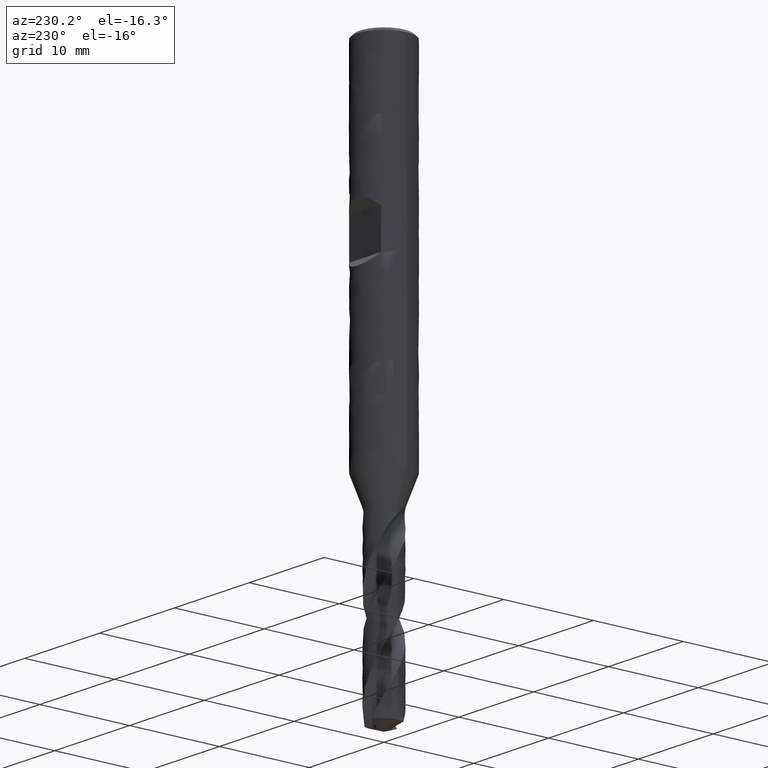
[diagram: clean part render]
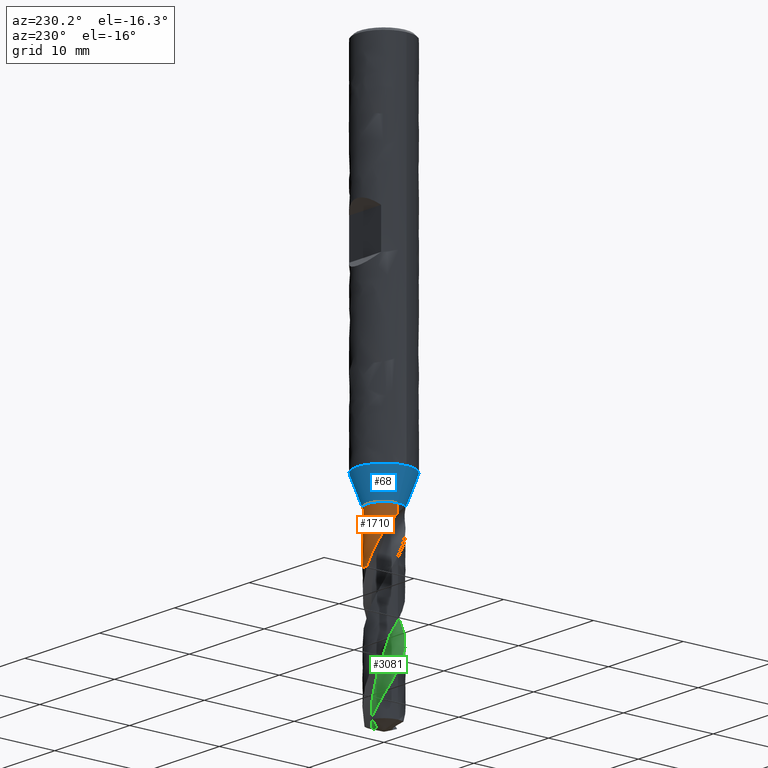
[diagram: same view with three faces highlighted in distinct colors, each labeled with its STEP entity id]
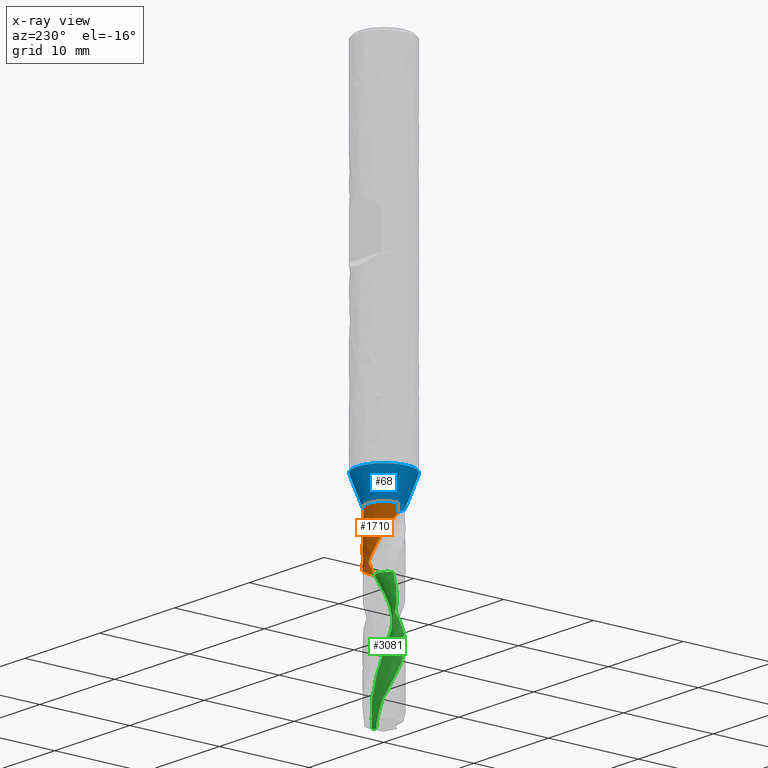
[diagram: x-ray of the same camera — body ghosted, the three highlighted faces saturated]
A machine part, auxiliary view with three faces highlighted in distinct colors.
The next image is the same camera in x-ray (body ghosted, the three faces saturated) — at least one of them is partly hidden behind the body in this view.
Their STEP definitions:

[orange] entity #1710 — the highlighted face is a freeform B-spline surface patch.
#119 = VERTEX_POINT('', #120);
#120 = CARTESIAN_POINT('', (1.10024020626455, 1.48726981026274, -42.));
#130 = EDGE_CURVE('', #131, #119, #133, .T.);
#131 = VERTEX_POINT('', #132);
#132 = CARTESIAN_POINT('', (-1.85, 2.68503810713057E-15, -42.));
#133 = CIRCLE('', #134, 1.85);
#134 = AXIS2_PLACEMENT_3D('', #135, #136, #137);
#135 = CARTESIAN_POINT('', (1.57474777179495E-31, 2.57175827820944E-15, -42.));
#136 = DIRECTION('', (3.74939945665464E-33, 6.12323399573677E-17, -1.));
#137 = DIRECTION('', (-1., 6.12323399573677E-17, 0.));
#675 = VERTEX_POINT('', #676);
#676 = CARTESIAN_POINT('', (1.79952391492474, -0.429201211104915, -47.55));
#731 = EDGE_CURVE('', #732, #675, #734, .T.);
#732 = VERTEX_POINT('', #733);
#733 = CARTESIAN_POINT('', (1.73069871023089, 0.653591596033134, -45.6142021687221));
#734 = B_SPLINE_CURVE_WITH_KNOTS('', 3, (#735, #736, #737, #738, #739, #740, #741, #742, #743, #744, #745, #746, #747, #748, #749, #750, #751, #752, #753, #754, #755, #756, #757, #758, #759, #760, #761, #762, #763, #764, #765, #766, #767, #768), .UNSPECIFIED., .F., .U., (4, 3, 3, 3, 3, 3, 3, 3, 3, 3, 3, 4), (0., 0.131307389809113, 0.426486088284237, 0.623349345005055, 0.918404643924938, 1.11521526862668, 1.31201969954361, 1.35093285941579, 1.38985865251188, 1.68600164884581, 1.98208767934884, 2.22703454246129), .UNSPECIFIED.);
#735 = CARTESIAN_POINT('', (1.73069871023089, 0.653591596033134, -45.6142021687221));
#736 = CARTESIAN_POINT('', (1.73806492505469, 0.634085992576464, -45.6526860231074));
#737 = CARTESIAN_POINT('', (1.74512635359128, 0.614389979598257, -45.6911334783599));
#738 = CARTESIAN_POINT('', (1.75187504928931, 0.594502995516081, -45.7295352974037));
#739 = CARTESIAN_POINT('', (1.76704610108957, 0.549797102827893, -45.8158624948366));
#740 = CARTESIAN_POINT('', (1.7806365469637, 0.504115353743258, -45.9019830047171));
#741 = CARTESIAN_POINT('', (1.79249756168144, 0.457659798721801, -45.9879036681683));
#742 = CARTESIAN_POINT('', (1.80040801727127, 0.426677238321808, -46.0452066568799));
#743 = CARTESIAN_POINT('', (1.80755135119565, 0.395345544806986, -46.1024331583638));
#744 = CARTESIAN_POINT('', (1.81389175255734, 0.363726146990756, -46.1595833102811));
#745 = CARTESIAN_POINT('', (1.82339463821618, 0.316335531648224, -46.2452389853835));
#746 = CARTESIAN_POINT('', (1.83109595479214, 0.268283496512213, -46.3307509469144));
#747 = CARTESIAN_POINT('', (1.83690131476583, 0.219757957333908, -46.4161010481368));
#748 = CARTESIAN_POINT('', (1.84077366183847, 0.187389985246533, -46.4730320939489));
#749 = CARTESIAN_POINT('', (1.84380336814338, 0.154801288254321, -46.5299016552521));
#750 = CARTESIAN_POINT('', (1.84596655088532, 0.12209624487525, -46.5867305690563));
#751 = CARTESIAN_POINT('', (1.8481296655502, 0.0893922307495588, -46.64355769441));
#752 = CARTESIAN_POINT('', (1.84942584740443, 0.0565670753900717, -46.7003547725027));
#753 = CARTESIAN_POINT('', (1.84984728227811, 0.0237704069852826, -46.757168104698));
#754 = CARTESIAN_POINT('', (1.84993061049659, 0.0172856850968367, -46.7684015218944));
#755 = CARTESIAN_POINT('', (1.84997982452415, 0.0108017190892893, -46.7796356802538));
#756 = CARTESIAN_POINT('', (1.84999495886929, 0.00431881444415298, -46.7908704451283));
#757 = CARTESIAN_POINT('', (1.85001009812783, -0.0021661948870666, -46.8021088573884));
#758 = CARTESIAN_POINT('', (1.84999113572952, -0.00865018702176566, -46.8133479542716));
#759 = CARTESIAN_POINT('', (1.84993810604378, -0.0151328717419321, -46.8245875927009));
#760 = CARTESIAN_POINT('', (1.84953466224001, -0.0644523980667766, -46.9100974805524));
#761 = CARTESIAN_POINT('', (1.84715983747896, -0.11370335892818, -46.9956602351703));
#762 = CARTESIAN_POINT('', (1.84282410154334, -0.162786150426012, -47.0811973635816));
#763 = CARTESIAN_POINT('', (1.83848919962644, -0.211859500397167, -47.1667180381391));
#764 = CARTESIAN_POINT('', (1.83218932230782, -0.26078950816477, -47.2522440128447));
#765 = CARTESIAN_POINT('', (1.82394751665049, -0.309379146847798, -47.3377536057624));
#766 = CARTESIAN_POINT('', (1.81712921306922, -0.349576516358796, -47.4084942162384));
#767 = CARTESIAN_POINT('', (1.80898025363838, -0.389553355454615, -47.4792527247852));
#768 = CARTESIAN_POINT('', (1.79952391492474, -0.429201211104915, -47.55));
#771 = VERTEX_POINT('', #772);
#772 = CARTESIAN_POINT('', (1.49718759874657, 1.08670570724529, -44.7500251806955));
#781 = EDGE_CURVE('', #771, #119, #782, .T.);
#782 = B_SPLINE_CURVE_WITH_KNOTS('', 3, (#783, #784, #785, #786, #787, #788, #789, #790, #791, #792, #793, #794, #795, #796, #797, #798, #799, #800, #801, #802, #803, #804, #805, #806, #807, #808, #809, #810, #811, #812, #813, #814, #815, #816, #817, #818, #819, #820, #821, #822, #823, #824, #825, #826, #827, #828, #829, #830, #831, #832, #833, #834, #835, #836, #837, #838, #839, #840, #841, #842, #843, #844, #845, #846, #847, #848, #849, #850, #851, #852, #853, #854, #855, #856, #857, #858, #859, #860, #861, #862, #863, #864, #865, #866, #867, #868, #869, #870, #871, #872, #873, #874, #875, #876), .UNSPECIFIED., .F., .U., (4, 3, 3, 3, 3, 3, 3, 3, 3, 3, 3, 3, 3, 3, 3, 3, 3, 3, 3, 3, 3, 3, 3, 3, 3, 3, 3, 3, 3, 3, 3, 4), (0., 0.0875844961724743, 0.284661913231413, 0.481547126377974, 0.612735009487167, 0.743855380556727, 0.874908558684904, 1.00589339122581, 1.13680877502436, 1.26766122932118, 1.39845748589746, 1.52920695332873, 1.65992658625604, 1.79063505644454, 1.92135879208782, 2.05213829723771, 2.18302753288296, 2.31410901812366, 2.4455079245888, 2.53327209903488, 2.55924725997595, 2.64733557715993, 2.73573734269401, 2.7946061471892, 2.85357373075538, 2.91262347631889, 2.971721802602, 3.03082163859826, 3.08987290581467, 3.14883507119857, 3.20768475162251, 3.24392678534288), .UNSPECIFIED.);
#783 = CARTESIAN_POINT('', (1.49718759874657, 1.08670570724529, -44.7500251806955));
#784 = CARTESIAN_POINT('', (1.48779157394233, 1.09965089720852, -44.7256023431544));
#785 = CARTESIAN_POINT('', (1.47816485835866, 1.11256039252554, -44.7012482111164));
#786 = CARTESIAN_POINT('', (1.46831867052837, 1.12540671838143, -44.6769508302682));
#787 = CARTESIAN_POINT('', (1.4461633650774, 1.15431275573982, -44.6222783109513));
#788 = CARTESIAN_POINT('', (1.42288689290747, 1.18290452644296, -44.5678825944904));
#789 = CARTESIAN_POINT('', (1.39865822269709, 1.21089024113741, -44.5136122320748));
#790 = CARTESIAN_POINT('', (1.37445318200894, 1.23884866217267, -44.4593947979761));
#791 = CARTESIAN_POINT('', (1.34929051625967, 1.26621001062962, -44.4052857726783));
#792 = CARTESIAN_POINT('', (1.32340143868604, 1.29271366979843, -44.3511156778398));
#793 = CARTESIAN_POINT('', (1.30615111689572, 1.31037349749923, -44.3150212451696));
#794 = CARTESIAN_POINT('', (1.28857761350959, 1.32765528226835, -44.2788927266559));
#795 = CARTESIAN_POINT('', (1.27076380428974, 1.34449222895028, -44.2426789638912));
#796 = CARTESIAN_POINT('', (1.25295916243021, 1.36132051098587, -44.2064838374892));
#797 = CARTESIAN_POINT('', (1.23491201298027, 1.37770683340821, -44.1701986069678));
#798 = CARTESIAN_POINT('', (1.21671093035233, 1.39359768655138, -44.1337776665513));
#799 = CARTESIAN_POINT('', (1.19851917491184, 1.40948039638963, -44.097375390131));
#800 = CARTESIAN_POINT('', (1.18017086116392, 1.42487064748245, -44.0608321147434));
#801 = CARTESIAN_POINT('', (1.16176075757828, 1.43972634279963, -44.0241074286454));
#802 = CARTESIAN_POINT('', (1.14336025505199, 1.45457429071812, -43.9874018948509));
#803 = CARTESIAN_POINT('', (1.12489481783544, 1.46889076924376, -43.9505088761629));
#804 = CARTESIAN_POINT('', (1.10647170437172, 1.4826396620301, -43.9133888936844));
#805 = CARTESIAN_POINT('', (1.08805835892492, 1.49638126509218, -43.8762885923861));
#806 = CARTESIAN_POINT('', (1.06968356932216, 1.50955872483177, -43.8389543017987));
#807 = CARTESIAN_POINT('', (1.0514615619496, 1.52214604547083, -43.8013533296288));
#808 = CARTESIAN_POINT('', (1.03324831368397, 1.53472731553131, -43.7637704318087));
#809 = CARTESIAN_POINT('', (1.01518328615826, 1.54672209282422, -43.7259123850508));
#810 = CARTESIAN_POINT('', (0.997389908957161, 1.55811211711815, -43.6877528770398));
#811 = CARTESIAN_POINT('', (0.979604173548069, 1.56949724969335, -43.6496097575435));
#812 = CARTESIAN_POINT('', (0.962084902723827, 1.5802813087247, -43.6111545303886));
#813 = CARTESIAN_POINT('', (0.944968933364691, 1.59045078986294, -43.5723669493995));
#814 = CARTESIAN_POINT('', (0.927859086822776, 1.60061663311932, -43.5335932437139));
#815 = CARTESIAN_POINT('', (0.911146116690426, 1.6101720479847, -43.494474067188));
#816 = CARTESIAN_POINT('', (0.894978222354074, 1.61910900853281, -43.4549997540301));
#817 = CARTESIAN_POINT('', (0.878814017219043, 1.62804392983908, -43.4155344481483));
#818 = CARTESIAN_POINT('', (0.863187302587615, 1.63636478013494, -43.3756972129213));
#819 = CARTESIAN_POINT('', (0.848263421283126, 1.64406483087287, -43.3354901028513));
#820 = CARTESIAN_POINT('', (0.833340814396145, 1.65176422406876, -43.2952864262477));
#821 = CARTESIAN_POINT('', (0.81911299646185, 1.65884706397929, -43.2546905364967));
#822 = CARTESIAN_POINT('', (0.805771045875521, 1.66530268168543, -43.213719597785));
#823 = CARTESIAN_POINT('', (0.792427537081502, 1.67175905334378, -43.1727438740734));
#824 = CARTESIAN_POINT('', (0.779959992835708, 1.67759311940268, -43.1313637551797));
#825 = CARTESIAN_POINT('', (0.768589279019068, 1.68278653434622, -43.0896207413434));
#826 = CARTESIAN_POINT('', (0.757213714215755, 1.68798216491026, -43.0478599190557));
#827 = CARTESIAN_POINT('', (0.746924261114725, 1.69254220847085, -43.0056958871334));
#828 = CARTESIAN_POINT('', (0.73798753052526, 1.69642989975691, -42.9632060644398));
#829 = CARTESIAN_POINT('', (0.729043301575305, 1.7003208530089, -42.9206805906763));
#830 = CARTESIAN_POINT('', (0.721441954086721, 1.70354420960874, -42.8777722371873));
#831 = CARTESIAN_POINT('', (0.715510741516625, 1.70603176370616, -42.834619167081));
#832 = CARTESIAN_POINT('', (0.709570817204792, 1.70852297151326, -42.7914027139148));
#833 = CARTESIAN_POINT('', (0.70529385459575, 1.71028250413682, -42.7478580886532));
#834 = CARTESIAN_POINT('', (0.703092263163662, 1.71118709365148, -42.7042291377787));
#835 = CARTESIAN_POINT('', (0.700885340453501, 1.71209387368078, -42.660494536934));
#836 = CARTESIAN_POINT('', (0.700759484239835, 1.71214581456973, -42.616548311638));
#837 = CARTESIAN_POINT('', (0.703231865171529, 1.71112972734605, -42.5728303179947));
#838 = CARTESIAN_POINT('', (0.704883221923451, 1.71045106069083, -42.5436301235352));
#839 = CARTESIAN_POINT('', (0.707699185231693, 1.70929286831246, -42.5144700722903));
#840 = CARTESIAN_POINT('', (0.711852348203524, 1.70756148772369, -42.4855634557016));
#841 = CARTESIAN_POINT('', (0.71308154083581, 1.7070490589368, -42.4770080967195));
#842 = CARTESIAN_POINT('', (0.714428364625015, 1.70648605319393, -42.4684715908734));
#843 = CARTESIAN_POINT('', (0.715897336852126, 1.70586957387956, -42.4599610245613));
#844 = CARTESIAN_POINT('', (0.720878991894412, 1.70377893715534, -42.4310995493075));
#845 = CARTESIAN_POINT('', (0.727279876826642, 1.70107015460612, -42.4024697527541));
#846 = CARTESIAN_POINT('', (0.735263250160358, 1.69761242719404, -42.3744254614623));
#847 = CARTESIAN_POINT('', (0.743275031065925, 1.69414239600563, -42.3462813789937));
#848 = CARTESIAN_POINT('', (0.752918792739969, 1.68990212980674, -42.3186135509811));
#849 = CARTESIAN_POINT('', (0.764290050468918, 1.68474351720202, -42.2919226847272));
#850 = CARTESIAN_POINT('', (0.771862437106963, 1.68130827634389, -42.2741486122546));
#851 = CARTESIAN_POINT('', (0.780221032673677, 1.67745556176431, -42.2567586548856));
#852 = CARTESIAN_POINT('', (0.789356020453651, 1.67314586123672, -42.2399349201328));
#853 = CARTESIAN_POINT('', (0.798506336311274, 1.66882892923539, -42.2230829559484));
#854 = CARTESIAN_POINT('', (0.808463510941847, 1.6640400691018, -42.2067510075066));
#855 = CARTESIAN_POINT('', (0.819170559137839, 1.65875242126178, -42.1911384235334));
#856 = CARTESIAN_POINT('', (0.82989252591133, 1.65345740592114, -42.1755040858948));
#857 = CARTESIAN_POINT('', (0.841403395523842, 1.64764346301542, -42.1605397823732));
#858 = CARTESIAN_POINT('', (0.853589145210747, 1.64130605652279, -42.1464410215815));
#859 = CARTESIAN_POINT('', (0.865784920215849, 1.63496343619283, -42.1323306616214));
#860 = CARTESIAN_POINT('', (0.878701843925278, 1.62807232248379, -42.1190362316951));
#861 = CARTESIAN_POINT('', (0.892171592425917, 1.62065722769135, -42.1067215955503));
#862 = CARTESIAN_POINT('', (0.905641685021857, 1.61324194347449, -42.0944066448185));
#863 = CARTESIAN_POINT('', (0.919715384675111, 1.60527404957327, -42.0830247967134));
#864 = CARTESIAN_POINT('', (0.934188424724523, 1.59680680957676, -42.0726843516235));
#865 = CARTESIAN_POINT('', (0.948649570698693, 1.58834652803469, -42.0623524044049));
#866 = CARTESIAN_POINT('', (0.963561968641232, 1.57935654785095, -42.0530210874437));
#867 = CARTESIAN_POINT('', (0.978713057641022, 1.56991106461575, -42.0447338931924));
#868 = CARTESIAN_POINT('', (0.993841285322879, 1.5604798335703, -42.0364592034009));
#869 = CARTESIAN_POINT('', (1.0092579704569, 1.55056292152772, -42.029195933338));
#870 = CARTESIAN_POINT('', (1.02476747411455, 1.54024401443307, -42.0229303658746));
#871 = CARTESIAN_POINT('', (1.0402473895458, 1.529944793214, -42.0166767515357));
#872 = CARTESIAN_POINT('', (1.05586517880255, 1.51921510270485, -42.0113969247518));
#873 = CARTESIAN_POINT('', (1.07145688445502, 1.50813797271811, -42.0070374135543));
#874 = CARTESIAN_POINT('', (1.08105889279124, 1.50131622422921, -42.0043526487316));
#875 = CARTESIAN_POINT('', (1.09066390080343, 1.49435409061529, -42.0020124920595));
#876 = CARTESIAN_POINT('', (1.10024020626455, 1.48726981026274, -42.));
#1027 = EDGE_CURVE('', #771, #732, #1028, .T.);
#1028 = B_SPLINE_CURVE_WITH_KNOTS('', 3, (#1029, #1030, #1031, #1032, #1033, #1034, #1035, #1036, #1037, #1038, #1039, #1040, #1041, #1042, #1043, #1044, #1045, #1046, #1047, #1048, #1049, #1050, #1051, #1052, #1053), .UNSPECIFIED., .F., .U., (4, 3, 3, 3, 3, 3, 3, 3, 4), (0., 0.19705934381958, 0.328452626678, 0.416033315045694, 0.547364592198919, 0.678671321736232, 0.73705010214103, 0.9340217786549, 0.995558400814659), .UNSPECIFIED.);
#1029 = CARTESIAN_POINT('', (1.49718759874657, 1.08670570724529, -44.7500251806955));
#1030 = CARTESIAN_POINT('', (1.51832803527759, 1.05757988302692, -44.8049749554888));
#1031 = CARTESIAN_POINT('', (1.53819775188796, 1.02841371260222, -44.8604089169814));
#1032 = CARTESIAN_POINT('', (1.55681081058634, 0.999419881752162, -44.91633405678));
#1033 = CARTESIAN_POINT('', (1.56922144201854, 0.980087661598626, -44.9536232691056));
#1034 = CARTESIAN_POINT('', (1.58107599746843, 0.960828382463217, -44.9911406274283));
#1035 = CARTESIAN_POINT('', (1.59237270795861, 0.941726690154465, -45.0288997792663));
#1036 = CARTESIAN_POINT('', (1.59990257295244, 0.928994385085332, -45.0540682843695));
#1037 = CARTESIAN_POINT('', (1.607182831556, 0.916335883547868, -45.0793501704879));
#1038 = CARTESIAN_POINT('', (1.61423004891212, 0.903748498858629, -45.1047304498904));
#1039 = CARTESIAN_POINT('', (1.62479767601125, 0.88487313560142, -45.1427893481539));
#1040 = CARTESIAN_POINT('', (1.63484261468264, 0.866157779469954, -45.1810755169713));
#1041 = CARTESIAN_POINT('', (1.6444486249812, 0.847519156006302, -45.219504153418));
#1042 = CARTESIAN_POINT('', (1.65405283978477, 0.828884016356862, -45.2579256070259));
#1043 = CARTESIAN_POINT('', (1.66322041811302, 0.810323312682982, -45.296493666637));
#1044 = CARTESIAN_POINT('', (1.67205308195712, 0.791668169827293, -45.3350901323241));
#1045 = CARTESIAN_POINT('', (1.67598007141731, 0.783374120527383, -45.3522500646649));
#1046 = CARTESIAN_POINT('', (1.67984117626185, 0.77505991709071, -45.369415468581));
#1047 = CARTESIAN_POINT('', (1.68364524945491, 0.766706380557728, -45.3865742340519));
#1048 = CARTESIAN_POINT('', (1.69648030132172, 0.738521309127457, -45.4444684000189));
#1049 = CARTESIAN_POINT('', (1.70865598646685, 0.709907120557716, -45.502305359234));
#1050 = CARTESIAN_POINT('', (1.72013899947602, 0.680897806195353, -45.5600762113432));
#1051 = CARTESIAN_POINT('', (1.72372644841948, 0.6718349030987, -45.5781246087626));
#1052 = CARTESIAN_POINT('', (1.7272465665319, 0.662732810032255, -45.5961668821323));
#1053 = CARTESIAN_POINT('', (1.73069871023089, 0.653591596033134, -45.6142021687221));
#1073 = VERTEX_POINT('', #1074);
#1074 = CARTESIAN_POINT('', (-1.85, 2.74060482014409E-15, -42.907473290294));
#1115 = EDGE_CURVE('', #131, #1073, #1116, .T.);
#1116 = LINE('', #1117, #1118);
#1117 = CARTESIAN_POINT('', (-1.85, 2.68503810713057E-15, -42.));
#1118 = VECTOR('', #1119, 0.907473290293993);
#1119 = DIRECTION('', (2.22044604925031E-16, 5.5566713013513E-17, -0.907473290293993));
#1404 = EDGE_CURVE('', #1405, #1073, #1407, .T.);
#1405 = VERTEX_POINT('', #1406);
#1406 = CARTESIAN_POINT('', (-1.84306729502877, 0.160009205970575, -43.0867052285401));
#1407 = B_SPLINE_CURVE_WITH_KNOTS('', 3, (#1408, #1409, #1410, #1411), .UNSPECIFIED., .F., .U., (4, 4), (0., 0.240364506699763), .UNSPECIFIED.);
#1408 = CARTESIAN_POINT('', (-1.84306729502877, 0.160009205970575, -43.0867052285401));
#1409 = CARTESIAN_POINT('', (-1.84753732692424, 0.108521108493343, -43.0254806439916));
#1410 = CARTESIAN_POINT('', (-1.85, 0.0550703010069356, -42.9656687975701));
#1411 = CARTESIAN_POINT('', (-1.85, 3.17374358805204E-15, -42.907473290294));
#1533 = VERTEX_POINT('', #1534);
#1534 = CARTESIAN_POINT('', (0.0624869089179869, 1.84894439781565, -47.55));
#1541 = EDGE_CURVE('', #1405, #1533, #1542, .T.);
#1542 = B_SPLINE_CURVE_WITH_KNOTS('', 3, (#1543, #1544, #1545, #1546, #1547, #1548, #1549, #1550, #1551, #1552, #1553, #1554, #1555, #1556, #1557, #1558, #1559, #1560, #1561, #1562, #1563, #1564, #1565, #1566, #1567, #1568, #1569, #1570, #1571, #1572, #1573, #1574, #1575, #1576, #1577, #1578, #1579, #1580, #1581, #1582, #1583, #1584, #1585, #1586, #1587, #1588, #1589, #1590, #1591, #1592, #1593, #1594, #1595, #1596, #1597, #1598, #1599, #1600, #1601, #1602, #1603, #1604, #1605, #1606, #1607, #1608, #1609, #1610, #1611, #1612, #1613, #1614, #1615, #1616, #1617, #1618, #1619, #1620, #1621, #1622, #1623, #1624, #1625, #1626, #1627, #1628, #1629, #1630, #1631, #1632, #1633, #1634, #1635, #1636), .UNSPECIFIED., .F., .U., (4, 3, 3, 3, 3, 3, 3, 3, 3, 3, 3, 3, 3, 3, 3, 3, 3, 3, 3, 3, 3, 3, 3, 3, 3, 3, 3, 3, 3, 3, 3, 4), (0., 0.196716425756112, 0.393437133958274, 0.590177460143172, 0.786949945770257, 0.983762286250159, 1.1806236719491, 1.37754068411884, 1.57452691595147, 1.7715672682591, 1.96863333770452, 2.10000741513502, 2.29719094586903, 2.38479003934848, 2.47238311044585, 2.60373979518899, 2.73507246103043, 2.79345636772641, 2.99048712151061, 3.18744214066475, 3.38437231018558, 3.58129833184765, 3.87651929793646, 4.00781151643263, 4.20469341131031, 4.33598364964065, 4.467262650021, 4.7623512004803, 5.05739169356766, 5.14491864603676, 5.18384170503144, 5.282823434122), .UNSPECIFIED.);
#1543 = CARTESIAN_POINT('', (-1.84306729502877, 0.160009205970575, -43.0867052285401));
#1544 = CARTESIAN_POINT('', (-1.8394089816215, 0.202147517669626, -43.1368119668692));
#1545 = CARTESIAN_POINT('', (-1.83433192427245, 0.24384444205003, -43.1872078451688));
#1546 = CARTESIAN_POINT('', (-1.82791775511327, 0.284985404086193, -43.2378634023422));
#1547 = CARTESIAN_POINT('', (-1.82150344631992, 0.326127261746347, -43.2885200622689));
#1548 = CARTESIAN_POINT('', (-1.81374890392893, 0.366732595037007, -43.3394629215907));
#1549 = CARTESIAN_POINT('', (-1.80474407914063, 0.406692523667637, -43.3906684900215));
#1550 = CARTESIAN_POINT('', (-1.79573835634573, 0.446656437304203, -43.4418791649302));
#1551 = CARTESIAN_POINT('', (-1.78547746268948, 0.485996564263184, -43.493374642911));
#1552 = CARTESIAN_POINT('', (-1.7740550419084, 0.52462244355312, -43.5451271347679));
#1553 = CARTESIAN_POINT('', (-1.76263075400283, 0.563254636681993, -43.5968880861577));
#1554 = CARTESIAN_POINT('', (-1.75003931164126, 0.601189657327787, -43.6489293038802));
#1555 = CARTESIAN_POINT('', (-1.73638221861051, 0.63833908770612, -43.7012318891068));
#1556 = CARTESIAN_POINT('', (-1.72272235943371, 0.675496042434594, -43.7535450678462));
#1557 = CARTESIAN_POINT('', (-1.70799045171578, 0.711884146026345, -43.8061406899594));
#1558 = CARTESIAN_POINT('', (-1.69228860561475, 0.747435131169763, -43.8589940644174));
#1559 = CARTESIAN_POINT('', (-1.67658284664688, 0.782994975543498, -43.9118606098245));
#1560 = CARTESIAN_POINT('', (-1.65990016344424, 0.817731680688127, -43.9650057986794));
#1561 = CARTESIAN_POINT('', (-1.64234989441402, 0.851579018247076, -44.0184135772988));
#1562 = CARTESIAN_POINT('', (-1.6247946662623, 0.885435919936278, -44.0718364471776));
#1563 = CARTESIAN_POINT('', (-1.60636560613688, 0.918414893005741, -44.1255425994533));
#1564 = CARTESIAN_POINT('', (-1.58716699698794, 0.950474052077641, -44.1795065001637));
#1565 = CARTESIAN_POINT('', (-1.56796163920292, 0.982544480486602, -44.2334893700987));
#1566 = CARTESIAN_POINT('', (-1.54797906546389, 1.0137060309509, -44.2877487467111));
#1567 = CARTESIAN_POINT('', (-1.52732994534929, 1.04391725631885, -44.3422685054474));
#1568 = CARTESIAN_POINT('', (-1.50667515204536, 1.07413678199212, -44.3968032430744));
#1569 = CARTESIAN_POINT('', (-1.48534803003034, 1.10341346603317, -44.4516179767842));
#1570 = CARTESIAN_POINT('', (-1.46346141123672, 1.1317158202581, -44.5066981954612));
#1571 = CARTESIAN_POINT('', (-1.44157193586482, 1.16002186842458, -44.5617856030492));
#1572 = CARTESIAN_POINT('', (-1.41911608457152, 1.18736225758672, -44.6171554295696));
#1573 = CARTESIAN_POINT('', (-1.39620458087777, 1.21371857048327, -44.6727918541368));
#1574 = CARTESIAN_POINT('', (-1.38093062900578, 1.23128900409976, -44.7098818715589));
#1575 = CARTESIAN_POINT('', (-1.36545248290691, 1.24842444800441, -44.7470969854065));
#1576 = CARTESIAN_POINT('', (-1.34979710174421, 1.26512757622424, -44.7844279066911));
#1577 = CARTESIAN_POINT('', (-1.32629944228941, 1.29019783255722, -44.8404590736338));
#1578 = CARTESIAN_POINT('', (-1.30239311868943, 1.31430295233905, -44.8967606330958));
#1579 = CARTESIAN_POINT('', (-1.27819821668728, 1.3374263788551, -44.9533297349508));
#1580 = CARTESIAN_POINT('', (-1.2674495934411, 1.34769899743234, -44.9784606473703));
#1581 = CARTESIAN_POINT('', (-1.25664380815718, 1.35777821187863, -45.0036470461029));
#1582 = CARTESIAN_POINT('', (-1.24579550256816, 1.36765988673389, -45.0288916320781));
#1583 = CARTESIAN_POINT('', (-1.23494794279327, 1.37754088223027, -45.0541344825041));
#1584 = CARTESIAN_POINT('', (-1.22405901929778, 1.38722342849868, -45.079438080554));
#1585 = CARTESIAN_POINT('', (-1.21313597855746, 1.3967108138514, -45.1047991101634));
#1586 = CARTESIAN_POINT('', (-1.19675552287774, 1.41093832604159, -45.142831122621));
#1587 = CARTESIAN_POINT('', (-1.18029965092425, 1.4247267370008, -45.1809971554676));
#1588 = CARTESIAN_POINT('', (-1.16374451597932, 1.43812332625826, -45.2192546293281));
#1589 = CARTESIAN_POINT('', (-1.14719240818264, 1.45151746591553, -45.2575051077129));
#1590 = CARTESIAN_POINT('', (-1.13053991931252, 1.46452186999192, -45.2958502385999));
#1591 = CARTESIAN_POINT('', (-1.11369908485439, 1.47721844978815, -45.3342124270485));
#1592 = CARTESIAN_POINT('', (-1.10621249573061, 1.48286271144561, -45.3512663291884));
#1593 = CARTESIAN_POINT('', (-1.09868756825841, 1.48844671096236, -45.368323495497));
#1594 = CARTESIAN_POINT('', (-1.09111270762558, 1.49397893534614, -45.3853751307361));
#1595 = CARTESIAN_POINT('', (-1.06554949021243, 1.51264877781003, -45.44292003882));
#1596 = CARTESIAN_POINT('', (-1.03942606233949, 1.53072069983775, -45.5004159708261));
#1597 = CARTESIAN_POINT('', (-1.01279953459577, 1.54813988473994, -45.5578708014862));
#1598 = CARTESIAN_POINT('', (-0.986183241549883, 1.56555237406035, -45.6153035476734));
#1599 = CARTESIAN_POINT('', (-0.959060315084662, 1.58231618639474, -45.6727042137548));
#1600 = CARTESIAN_POINT('', (-0.931450019125531, 1.59840572504951, -45.7300534986446));
#1601 = CARTESIAN_POINT('', (-0.903843206732002, 1.61449323370202, -45.7873955478279));
#1602 = CARTESIAN_POINT('', (-0.875741680918833, 1.6299106471917, -45.8446936133014));
#1603 = CARTESIAN_POINT('', (-0.847180338500191, 1.64462320124055, -45.9019373474767));
#1604 = CARTESIAN_POINT('', (-0.8186195976573, 1.65933544540496, -45.9591798759508));
#1605 = CARTESIAN_POINT('', (-0.789594436399037, 1.67334506704525, -46.0163775908209));
#1606 = CARTESIAN_POINT('', (-0.760149899400824, 1.6866155846668, -46.0735246442443));
#1607 = CARTESIAN_POINT('', (-0.716008223327324, 1.70651003538319, -46.1591964522582));
#1608 = CARTESIAN_POINT('', (-0.670911021226302, 1.72474784854423, -46.2447824615591));
#1609 = CARTESIAN_POINT('', (-0.625025846268929, 1.74121873740662, -46.3302645998306));
#1610 = CARTESIAN_POINT('', (-0.604619550279687, 1.74854375760419, -46.3682806653024));
#1611 = CARTESIAN_POINT('', (-0.584055035286918, 1.75552054066732, -46.4062808468294));
#1612 = CARTESIAN_POINT('', (-0.563346944238391, 1.76214080607007, -46.4442629626469));
#1613 = CARTESIAN_POINT('', (-0.532293708550606, 1.7720683586091, -46.5012198106556));
#1614 = CARTESIAN_POINT('', (-0.500909312496762, 1.78119609540538, -46.5581421256214));
#1615 = CARTESIAN_POINT('', (-0.469273212738794, 1.78949228883665, -46.6150391611139));
#1616 = CARTESIAN_POINT('', (-0.448176752449004, 1.79502458632648, -46.6529808182416));
#1617 = CARTESIAN_POINT('', (-0.426967308034687, 1.8001874748472, -46.6909154781211));
#1618 = CARTESIAN_POINT('', (-0.405680311941987, 1.80497187914456, -46.7288523937935));
#1619 = CARTESIAN_POINT('', (-0.384395137935988, 1.80975587391494, -46.7667860622089));
#1620 = CARTESIAN_POINT('', (-0.363034204533166, 1.81416132216792, -46.804726918238));
#1621 = CARTESIAN_POINT('', (-0.341611422508361, 1.81818635898849, -46.8426712449126));
#1622 = CARTESIAN_POINT('', (-0.293457356159673, 1.82723382490067, -46.9279623906717));
#1623 = CARTESIAN_POINT('', (-0.244978150929419, 1.83436186632939, -47.0132957013568));
#1624 = CARTESIAN_POINT('', (-0.196287717151153, 1.83955731960046, -47.0986039612971));
#1625 = CARTESIAN_POINT('', (-0.147605212973281, 1.8447519267532, -47.1838983281508));
#1626 = CARTESIAN_POINT('', (-0.0986926689142294, 1.84801458656962, -47.2692011964943));
#1627 = CARTESIAN_POINT('', (-0.0497394103237586, 1.84933122805535, -47.3544886170324));
#1628 = CARTESIAN_POINT('', (-0.0352168968442727, 1.84972182398859, -47.3797900525253));
#1629 = CARTESIAN_POINT('', (-0.0206897971943586, 1.84994133859987, -47.4050920752433));
#1630 = CARTESIAN_POINT('', (-0.00616321375096243, 1.84998973370024, -47.4303941429912));
#1631 = CARTESIAN_POINT('', (0.000296728568611685, 1.85001125490363, -47.441645921419));
#1632 = CARTESIAN_POINT('', (0.00675665059765977, 1.84999893921518, -47.4528978270825));
#1633 = CARTESIAN_POINT('', (0.0132161625767325, 1.84995279211302, -47.4641497785203));
#1634 = CARTESIAN_POINT('', (0.0296427662734565, 1.84983543956977, -47.4927636037881));
#1635 = CARTESIAN_POINT('', (0.0460709922501212, 1.84949918999374, -47.5213851793178));
#1636 = CARTESIAN_POINT('', (0.0624869089179869, 1.84894439781565, -47.55));
#1710 = ADVANCED_FACE('', (#1711), #1727, .T.);
#1711 = FACE_OUTER_BOUND('', #1712, .T.);
#1712 = EDGE_LOOP('', (#1713, #1720, #1721, #1722, #1723, #1724, #1725, #1726));
#1713 = ORIENTED_EDGE('', *, *, #1714, .F.);
#1714 = EDGE_CURVE('', #1533, #675, #1715, .T.);
#1715 = CIRCLE('', #1716, 1.85);
#1716 = AXIS2_PLACEMENT_3D('', #1717, #1718, #1719);
#1717 = CARTESIAN_POINT('', (1.78283944163928E-31, 2.91159776497283E-15, -47.55));
#1718 = DIRECTION('', (3.74939945665464E-33, 6.12323399573677E-17, -1.));
#1719 = DIRECTION('', (-1., 6.12323399573677E-17, 0.));
#1720 = ORIENTED_EDGE('', *, *, #1541, .F.);
#1721 = ORIENTED_EDGE('', *, *, #1404, .T.);
#1722 = ORIENTED_EDGE('', *, *, #1115, .F.);
#1723 = ORIENTED_EDGE('', *, *, #130, .T.);
#1724 = ORIENTED_EDGE('', *, *, #781, .F.);
#1725 = ORIENTED_EDGE('', *, *, #1027, .T.);
#1726 = ORIENTED_EDGE('', *, *, #731, .T.);
#1727 = (
   BOUNDED_SURFACE ()
   B_SPLINE_SURFACE (2, 1, ((#1728, #1729), (#1730, #1731), (#1732, #1733), (#1734, #1735), (#1736, #1737), (#1738, #1739), (#1740, #1741), (#1742, #1743), (#1744, #1745)), .UNSPECIFIED., .T., .F., .U.)
   B_SPLINE_SURFACE_WITH_KNOTS ((3, 2, 2, 2, 3), (2, 2), (0., 2.90597320457056, 5.81194640914112, 8.71791961371168, 11.6238928182822), (0., 0.287168161322921), .UNSPECIFIED.)
   GEOMETRIC_REPRESENTATION_ITEM ()
   RATIONAL_B_SPLINE_SURFACE (((1., 1.), (0.707106781186548, 0.707106781186548), (1., 1.), (0.707106781186548, 0.707106781186548), (1., 1.), (0.707106781186548, 0.707106781186548), (1., 1.), (0.707106781186548, 0.707106781186548), (1., 1.)))
   REPRESENTATION_ITEM ('')
   SURFACE ()
);
#1728 = CARTESIAN_POINT('', (-1.85, 2.68503810713057E-15, -42.));
#1729 = CARTESIAN_POINT('', (-1.85, 3.02487759389396E-15, -47.55));
#1730 = CARTESIAN_POINT('', (-1.85, 1.85, -42.));
#1731 = CARTESIAN_POINT('', (-1.85, 1.85, -47.55));
#1732 = CARTESIAN_POINT('', (1.4791141972894E-31, 1.85, -42.));
#1733 = CARTESIAN_POINT('', (1.72563323017096E-31, 1.85, -47.55));
#1734 = CARTESIAN_POINT('', (1.85, 1.85, -42.));
#1735 = CARTESIAN_POINT('', (1.85, 1.85, -47.55));
#1736 = CARTESIAN_POINT('', (1.85, 2.68503810713057E-15, -42.));
#1737 = CARTESIAN_POINT('', (1.85, 3.02487759389396E-15, -47.55));
#1738 = CARTESIAN_POINT('', (1.85, -1.85, -42.));
#1739 = CARTESIAN_POINT('', (1.85, -1.85, -47.55));
#1740 = CARTESIAN_POINT('', (2.2655965784226E-16, -1.85, -42.));
#1741 = CARTESIAN_POINT('', (2.2655965784226E-16, -1.85, -47.55));
#1742 = CARTESIAN_POINT('', (-1.85, -1.85, -42.));
#1743 = CARTESIAN_POINT('', (-1.85, -1.85, -47.55));
#1744 = CARTESIAN_POINT('', (-1.85, 2.68503810713057E-15, -42.));
#1745 = CARTESIAN_POINT('', (-1.85, 3.02487759389396E-15, -47.55));

[blue] entity #68 — the highlighted face is a freeform B-spline surface patch.
#68 = ADVANCED_FACE('', (#69), #184, .T.);
#69 = FACE_OUTER_BOUND('', #70, .T.);
#70 = EDGE_LOOP('', (#71, #85, #94, #109, #117, #129, #138, #146, #153, #154, #163, #178));
#71 = ORIENTED_EDGE('', *, *, #72, .T.);
#72 = EDGE_CURVE('', #73, #75, #77, .T.);
#73 = VERTEX_POINT('', #74);
#74 = CARTESIAN_POINT('', (-1.19754672139103, -1.41993392433432, -41.98));
#75 = VERTEX_POINT('', #76);
#76 = CARTESIAN_POINT('', (-1.10024020626456, -1.48726981026272, -42.));
#77 = B_SPLINE_CURVE_WITH_KNOTS('', 3, (#78, #79, #80, #81, #82, #83, #84), .UNSPECIFIED., .F., .U., (4, 3, 4), (0., 0.0585521144452306, 0.120653022107347), .UNSPECIFIED.);
#78 = CARTESIAN_POINT('', (-1.19754672138802, -1.41993392433686, -41.98));
#79 = CARTESIAN_POINT('', (-1.18261838986002, -1.43250656990047, -41.9800359287981));
#80 = CARTESIAN_POINT('', (-1.16709415494035, -1.44451106999787, -41.981420174734));
#81 = CARTESIAN_POINT('', (-1.15129243136047, -1.45555763565578, -41.9844544305945));
#82 = CARTESIAN_POINT('', (-1.13453297892679, -1.46727372414217, -41.9876725900888));
#83 = CARTESIAN_POINT('', (-1.11729787431358, -1.47801244373859, -41.9928000241947));
#84 = CARTESIAN_POINT('', (-1.10024020626456, -1.48726981026272, -42.));
#85 = ORIENTED_EDGE('', *, *, #86, .F.);
#86 = EDGE_CURVE('', #87, #75, #89, .T.);
#87 = VERTEX_POINT('', #88);
#88 = CARTESIAN_POINT('', (1.29785377991718, 1.31836093917967, -42.));
#89 = CIRCLE('', #90, 1.85);
#90 = AXIS2_PLACEMENT_3D('', #91, #92, #93);
#91 = CARTESIAN_POINT('', (1.57474777179495E-31, 2.57175827820944E-15, -42.));
#92 = DIRECTION('', (3.74939945665464E-33, 6.12323399573677E-17, -1.));
#93 = DIRECTION('', (-1., 6.12323399573677E-17, 0.));
#94 = ORIENTED_EDGE('', *, *, #95, .F.);
#95 = EDGE_CURVE('', #96, #87, #98, .T.);
#96 = VERTEX_POINT('', #97);
#97 = CARTESIAN_POINT('', (1.19874959056958, 1.41891857359721, -41.98));
#98 = B_SPLINE_CURVE_WITH_KNOTS('', 3, (#99, #100, #101, #102, #103, #104, #105, #106, #107, #108), .UNSPECIFIED., .F., .U., (4, 3, 3, 4), (0., 0.0585747594549486, 0.116961702940968, 0.143064099817723), .UNSPECIFIED.);
#99 = CARTESIAN_POINT('', (1.19874959057069, 1.41891857359627, -41.98));
#100 = CARTESIAN_POINT('', (1.21365563817495, 1.40630782610472, -41.9800358669157));
#101 = CARTESIAN_POINT('', (1.22806649840002, 1.39305453141417, -41.9814036476247));
#102 = CARTESIAN_POINT('', (1.24184839262105, 1.37943423320448, -41.9838055973059));
#103 = CARTESIAN_POINT('', (1.25558609613876, 1.36585760755152, -41.9861998452994));
#104 = CARTESIAN_POINT('', (1.26876195589476, 1.35185717448914, -41.9896297864116));
#105 = CARTESIAN_POINT('', (1.28133460926081, 1.33761550001236, -41.9938588266042));
#106 = CARTESIAN_POINT('', (1.28695532458449, 1.33124863411414, -41.9957494562368));
#107 = CARTESIAN_POINT('', (1.29246196094312, 1.32482639470035, -41.9978022567064));
#108 = CARTESIAN_POINT('', (1.29785377991718, 1.31836093917967, -42.));
#109 = ORIENTED_EDGE('', *, *, #110, .F.);
#110 = EDGE_CURVE('', #111, #96, #113, .T.);
#111 = VERTEX_POINT('', #112);
#112 = CARTESIAN_POINT('', (1.19754672139103, 1.41993392433432, -41.98));
#113 = LINE('', #114, #115);
#114 = CARTESIAN_POINT('', (1.19754672139103, 1.41993392433432, -41.98));
#115 = VECTOR('', #116, 0.00157411288670074);
#116 = DIRECTION('', (0.0012028691785535, -0.00101535073711667, 0.));
#117 = ORIENTED_EDGE('', *, *, #118, .T.);
#118 = EDGE_CURVE('', #111, #119, #121, .T.);
#119 = VERTEX_POINT('', #120);
#120 = CARTESIAN_POINT('', (1.10024020626455, 1.48726981026274, -42.));
#121 = B_SPLINE_CURVE_WITH_KNOTS('', 3, (#122, #123, #124, #125, #126, #127, #128), .UNSPECIFIED., .F., .U., (4, 3, 4), (0., 0.0585521144452318, 0.120653022108063), .UNSPECIFIED.);
#122 = CARTESIAN_POINT('', (1.19754672138856, 1.41993392433641, -41.98));
#123 = CARTESIAN_POINT('', (1.18261838986057, 1.43250656990003, -41.9800359287981));
#124 = CARTESIAN_POINT('', (1.16709415494091, 1.44451106999745, -41.981420174734));
#125 = CARTESIAN_POINT('', (1.15129243136104, 1.45555763565538, -41.9844544305944));
#126 = CARTESIAN_POINT('', (1.13453297892717, 1.46727372414193, -41.9876725900887));
#127 = CARTESIAN_POINT('', (1.11729787431376, 1.4780124437385, -41.9928000241947));
#128 = CARTESIAN_POINT('', (1.10024020626455, 1.48726981026273, -42.));
#129 = ORIENTED_EDGE('', *, *, #130, .F.);
#130 = EDGE_CURVE('', #131, #119, #133, .T.);
#131 = VERTEX_POINT('', #132);
#132 = CARTESIAN_POINT('', (-1.85, 2.68503810713057E-15, -42.));
#133 = CIRCLE('', #134, 1.85);
#134 = AXIS2_PLACEMENT_3D('', #135, #136, #137);
#135 = CARTESIAN_POINT('', (1.57474777179495E-31, 2.57175827820944E-15, -42.));
#136 = DIRECTION('', (3.74939945665464E-33, 6.12323399573677E-17, -1.));
#137 = DIRECTION('', (-1., 6.12323399573677E-17, 0.));
#138 = ORIENTED_EDGE('', *, *, #139, .F.);
#139 = EDGE_CURVE('', #140, #131, #142, .T.);
#140 = VERTEX_POINT('', #141);
#141 = CARTESIAN_POINT('', (-3., 2.56783940845217E-15, -38.936));
#142 = LINE('', #143, #144);
#143 = CARTESIAN_POINT('', (-3., 2.56783940845217E-15, -38.936));
#144 = VECTOR('', #145, 3.27270469184129);
#145 = DIRECTION('', (1.15, 1.17198698678402E-16, -3.064));
#146 = ORIENTED_EDGE('', *, *, #147, .T.);
#147 = EDGE_CURVE('', #140, #140, #148, .T.);
#148 = CIRCLE('', #149, 3.);
#149 = AXIS2_PLACEMENT_3D('', #150, #151, #152);
#150 = CARTESIAN_POINT('', (1.45986617244305E-31, 2.38414238858007E-15, -38.936));
#151 = DIRECTION('', (3.74939945665464E-33, 6.12323399573677E-17, -1.));
#152 = DIRECTION('', (-1., 6.12323399573677E-17, 0.));
#153 = ORIENTED_EDGE('', *, *, #139, .T.);
#154 = ORIENTED_EDGE('', *, *, #155, .F.);
#155 = EDGE_CURVE('', #156, #131, #158, .T.);
#156 = VERTEX_POINT('', #157);
#157 = CARTESIAN_POINT('', (-1.29785377991718, -1.31836093917966, -42.));
#158 = CIRCLE('', #159, 1.85);
#159 = AXIS2_PLACEMENT_3D('', #160, #161, #162);
#160 = CARTESIAN_POINT('', (1.57474777179495E-31, 2.57175827820944E-15, -42.));
#161 = DIRECTION('', (3.74939945665464E-33, 6.12323399573677E-17, -1.));
#162 = DIRECTION('', (-1., 6.12323399573677E-17, 0.));
#163 = ORIENTED_EDGE('', *, *, #164, .F.);
#164 = EDGE_CURVE('', #165, #156, #167, .T.);
#165 = VERTEX_POINT('', #166);
#166 = CARTESIAN_POINT('', (-1.19874959056958, -1.4189185735972, -41.98));
#167 = B_SPLINE_CURVE_WITH_KNOTS('', 3, (#168, #169, #170, #171, #172, #173, #174, #175, #176, #177), .UNSPECIFIED., .F., .U., (4, 3, 3, 4), (0., 0.0585747594549498, 0.11696170294097, 0.143064099817973), .UNSPECIFIED.);
#168 = CARTESIAN_POINT('', (-1.1987495905705, -1.41891857359643, -41.98));
#169 = CARTESIAN_POINT('', (-1.21365563817476, -1.40630782610488, -41.9800358669157));
#170 = CARTESIAN_POINT('', (-1.22806649839983, -1.39305453141434, -41.9814036476247));
#171 = CARTESIAN_POINT('', (-1.24184839262087, -1.37943423320465, -41.9838055973059));
#172 = CARTESIAN_POINT('', (-1.25558609613859, -1.36585760755169, -41.9861998452993));
#173 = CARTESIAN_POINT('', (-1.26876195589459, -1.35185717448931, -41.9896297864116));
#174 = CARTESIAN_POINT('', (-1.28133460926065, -1.33761550001254, -41.9938588266041));
#175 = CARTESIAN_POINT('', (-1.28695532458438, -1.33124863411426, -41.9957494562368));
#176 = CARTESIAN_POINT('', (-1.29246196094307, -1.32482639470041, -41.9978022567064));
#177 = CARTESIAN_POINT('', (-1.29785377991718, -1.31836093917967, -42.));
#178 = ORIENTED_EDGE('', *, *, #179, .F.);
#179 = EDGE_CURVE('', #73, #165, #180, .T.);
#180 = LINE('', #181, #182);
#181 = CARTESIAN_POINT('', (-1.19754672139103, -1.41993392433432, -41.98));
#182 = VECTOR('', #183, 0.00157411288670122);
#183 = DIRECTION('', (-0.00120286917855394, 0.00101535073711689, 0.));
#184 = (
   BOUNDED_SURFACE ()
   B_SPLINE_SURFACE (2, 1, ((#185, #186), (#187, #188), (#189, #190), (#191, #192), (#193, #194), (#195, #196), (#197, #198), (#199, #200), (#201, #202)), .UNSPECIFIED., .T., .F., .U.)
   B_SPLINE_SURFACE_WITH_KNOTS ((3, 2, 2, 2, 3), (2, 2), (0., 0.25, 0.5, 0.75, 1.), (0., 1.), .UNSPECIFIED.)
   GEOMETRIC_REPRESENTATION_ITEM ()
   RATIONAL_B_SPLINE_SURFACE (((1., 1.), (0.707106781186548, 0.707106781186548), (1., 1.), (0.707106781186548, 0.707106781186548), (1., 1.), (0.707106781186548, 0.707106781186548), (1., 1.), (0.707106781186548, 0.707106781186548), (1., 1.)))
   REPRESENTATION_ITEM ('')
   SURFACE ()
);
#185 = CARTESIAN_POINT('', (-3., 2.56783940845217E-15, -38.936));
#186 = CARTESIAN_POINT('', (-1.85, 2.68503810713057E-15, -42.));
#187 = CARTESIAN_POINT('', (-3., 3., -38.936));
#188 = CARTESIAN_POINT('', (-1.85, 1.85, -42.));
#189 = CARTESIAN_POINT('', (1.23259516440783E-31, 3., -38.936));
#190 = CARTESIAN_POINT('', (1.4791141972894E-31, 1.85, -42.));
#191 = CARTESIAN_POINT('', (3., 3., -38.936));
#192 = CARTESIAN_POINT('', (1.85, 1.85, -42.));
#193 = CARTESIAN_POINT('', (3., 2.56783940845217E-15, -38.936));
#194 = CARTESIAN_POINT('', (1.85, 2.68503810713057E-15, -42.));
#195 = CARTESIAN_POINT('', (3., -3., -38.936));
#196 = CARTESIAN_POINT('', (1.85, -1.85, -42.));
#197 = CARTESIAN_POINT('', (3.67394039744206E-16, -3., -38.936));
#198 = CARTESIAN_POINT('', (2.2655965784226E-16, -1.85, -42.));
#199 = CARTESIAN_POINT('', (-3., -3., -38.936));
#200 = CARTESIAN_POINT('', (-1.85, -1.85, -42.));
#201 = CARTESIAN_POINT('', (-3., 2.56783940845217E-15, -38.936));
#202 = CARTESIAN_POINT('', (-1.85, 2.68503810713057E-15, -42.));

[green] entity #3081 — the highlighted face is a freeform B-spline surface patch.
#1833 = VERTEX_POINT('', #1834);
#1834 = CARTESIAN_POINT('', (0.117680316595906, -1.1013331692333, -47.55));
#1840 = EDGE_CURVE('', #1833, #1841, #1843, .T.);
#1841 = VERTEX_POINT('', #1842);
#1842 = CARTESIAN_POINT('', (1.79952391492474, -0.429201211104915, -47.55));
#1843 = B_SPLINE_CURVE_WITH_KNOTS('', 3, (#1844, #1845, #1846, #1847, #1848, #1849, #1850, #1851, #1852, #1853, #1854, #1855, #1856, #1857, #1858, #1859, #1860, #1861, #1862, #1863, #1864, #1865, #1866, #1867, #1868, #1869, #1870, #1871, #1872, #1873, #1874, #1875, #1876, #1877, #1878, #1879, #1880, #1881, #1882, #1883, #1884, #1885, #1886, #1887, #1888, #1889, #1890, #1891, #1892, #1893, #1894, #1895), .UNSPECIFIED., .F., .U., (4, 3, 3, 3, 3, 3, 3, 3, 3, 3, 3, 3, 3, 3, 3, 3, 3, 4), (0., 0.132329067379442, 0.264410806722065, 0.396252755002606, 0.527860464644484, 0.659237681876153, 0.79038646568799, 0.921307255455104, 1.0519988918223, 1.07793052957627, 1.21023499645426, 1.34229296698031, 1.47411177412223, 1.60569678668554, 1.73705158138576, 1.86817805648667, 1.99907649469606, 2.11701907980917), .UNSPECIFIED.);
#1844 = CARTESIAN_POINT('', (0.117680316595907, -1.1013331692333, -47.55));
#1845 = CARTESIAN_POINT('', (0.128014483015406, -1.05845112544748, -47.55));
#1846 = CARTESIAN_POINT('', (0.140932018692373, -1.01611126640042, -47.55));
#1847 = CARTESIAN_POINT('', (0.156295612116367, -0.974763658586464, -47.55));
#1848 = CARTESIAN_POINT('', (0.171630490402597, -0.933493331016901, -47.55));
#1849 = CARTESIAN_POINT('', (0.189456441980003, -0.893065715229941, -47.55));
#1850 = CARTESIAN_POINT('', (0.209584685380039, -0.853908950202919, -47.55));
#1851 = CARTESIAN_POINT('', (0.229676386462516, -0.814823273293908, -47.55));
#1852 = CARTESIAN_POINT('', (0.25213272946994, -0.776866222330638, -47.55));
#1853 = CARTESIAN_POINT('', (0.276716756331579, -0.740438317983978, -47.55));
#1854 = CARTESIAN_POINT('', (0.301257105675858, -0.704075133727053, -47.55));
#1855 = CARTESIAN_POINT('', (0.32800364377009, -0.669108089993537, -47.55));
#1856 = CARTESIAN_POINT('', (0.356675141970414, -0.635904850600502, -47.55));
#1857 = CARTESIAN_POINT('', (0.385296426070496, -0.602759762015618, -47.55));
#1858 = CARTESIAN_POINT('', (0.415935958879405, -0.571256421195463, -47.55));
#1859 = CARTESIAN_POINT('', (0.448272703047307, -0.5417249163666, -47.55));
#1860 = CARTESIAN_POINT('', (0.480553221385402, -0.51224475973024, -47.55));
#1861 = CARTESIAN_POINT('', (0.514637481955325, -0.484626870701837, -47.55));
#1862 = CARTESIAN_POINT('', (0.550169591575323, -0.459159623394111, -47.55));
#1863 = CARTESIAN_POINT('', (0.585639930821595, -0.433736649319829, -47.55));
#1864 = CARTESIAN_POINT('', (0.622676203953428, -0.410368566576926, -47.55));
#1865 = CARTESIAN_POINT('', (0.660893034049421, -0.389298529214805, -47.55));
#1866 = CARTESIAN_POINT('', (0.699042972427406, -0.368265371180302, -47.55));
#1867 = CARTESIAN_POINT('', (0.738501297075713, -0.349449432794671, -47.55));
#1868 = CARTESIAN_POINT('', (0.778858860991549, -0.333045818256174, -47.55));
#1869 = CARTESIAN_POINT('', (0.786866548072288, -0.329791037752294, -47.55));
#1870 = CARTESIAN_POINT('', (0.794912803461559, -0.326629580488203, -47.55));
#1871 = CARTESIAN_POINT('', (0.802994334238026, -0.32356274028687, -47.55));
#1872 = CARTESIAN_POINT('', (0.844226694148443, -0.307915573621698, -47.55));
#1873 = CARTESIAN_POINT('', (0.886467861206047, -0.294706617090472, -47.55));
#1874 = CARTESIAN_POINT('', (0.929268984487419, -0.284076227902742, -47.55));
#1875 = CARTESIAN_POINT('', (0.971990365028456, -0.273465644185048, -47.55));
#1876 = CARTESIAN_POINT('', (1.01542050297414, -0.265386517726113, -47.55));
#1877 = CARTESIAN_POINT('', (1.05909962693906, -0.259924377868939, -47.55));
#1878 = CARTESIAN_POINT('', (1.10269964589379, -0.25447213021174, -47.55));
#1879 = CARTESIAN_POINT('', (1.14670118339453, -0.251608177939679, -47.55));
#1880 = CARTESIAN_POINT('', (1.19064010023415, -0.251362730736598, -47.55));
#1881 = CARTESIAN_POINT('', (1.23450108676345, -0.251117718860058, -47.55));
#1882 = CARTESIAN_POINT('', (1.27845348202857, -0.253481040176416, -47.55));
#1883 = CARTESIAN_POINT('', (1.32203530397453, -0.258427853899828, -47.55));
#1884 = CARTESIAN_POINT('', (1.36554087624947, -0.263366012801067, -47.55));
#1885 = CARTESIAN_POINT('', (1.40882920189212, -0.270895856412336, -47.55));
#1886 = CARTESIAN_POINT('', (1.45144686542426, -0.280938514793735, -47.55));
#1887 = CARTESIAN_POINT('', (1.49399045135699, -0.290963717126096, -47.55));
#1888 = CARTESIAN_POINT('', (1.53601386192505, -0.303527886608211, -47.55));
#1889 = CARTESIAN_POINT('', (1.5770784556353, -0.318499878100096, -47.55));
#1890 = CARTESIAN_POINT('', (1.618071635527, -0.333445832390897, -47.55));
#1891 = CARTESIAN_POINT('', (1.6582515976197, -0.350843078047793, -47.55));
#1892 = CARTESIAN_POINT('', (1.69720039605137, -0.370510651564238, -47.55));
#1893 = CARTESIAN_POINT('', (1.73229418354738, -0.388231599920556, -47.55));
#1894 = CARTESIAN_POINT('', (1.76650873760519, -0.407856328860662, -47.55));
#1895 = CARTESIAN_POINT('', (1.79952391492474, -0.42920121110492, -47.55));
#2952 = EDGE_CURVE('', #1841, #2953, #2955, .T.);
#2953 = VERTEX_POINT('', #2954);
#2954 = CARTESIAN_POINT('', (1.61069616015386, -0.910031801458399, -48.4499558776073));
#2955 = B_SPLINE_CURVE_WITH_KNOTS('', 3, (#2956, #2957, #2958, #2959, #2960, #2961, #2962, #2963, #2964, #2965, #2966, #2967, #2968), .UNSPECIFIED., .F., .U., (4, 3, 3, 3, 4), (2.22703454246129, 2.2781004549203, 2.57404858523482, 3.01806384580835, 3.26545729139671), .UNSPECIFIED.);
#2956 = CARTESIAN_POINT('', (1.79952391492474, -0.429201211104915, -47.55));
#2957 = CARTESIAN_POINT('', (1.7975524809623, -0.437466897385192, -47.5647492158786));
#2958 = CARTESIAN_POINT('', (1.79552396901471, -0.445719504550348, -47.5794999214112));
#2959 = CARTESIAN_POINT('', (1.79343894286098, -0.453956780133884, -47.5942494111476));
#2960 = CARTESIAN_POINT('', (1.78135535202438, -0.501695206619269, -47.679728818063));
#2961 = CARTESIAN_POINT('', (1.76736360054956, -0.548953638421734, -47.7652291230258));
#2962 = CARTESIAN_POINT('', (1.75151307303465, -0.59556859805452, -47.8507130738782));
#2963 = CARTESIAN_POINT('', (1.72773229733831, -0.665505696241214, -47.9789658818019));
#2964 = CARTESIAN_POINT('', (1.69974680451621, -0.734039946988845, -48.1072800748996));
#2965 = CARTESIAN_POINT('', (1.66778700547677, -0.800616327814272, -48.2355441092091));
#2966 = CARTESIAN_POINT('', (1.64997985895108, -0.83771090926161, -48.3070094037846));
#2967 = CARTESIAN_POINT('', (1.63093359636479, -0.874212876510867, -48.3784867125071));
#2968 = CARTESIAN_POINT('', (1.61069616015385, -0.910031801458401, -48.4499558776073));
#3081 = ADVANCED_FACE('', (#3082), #3287, .T.);
#3082 = FACE_OUTER_BOUND('', #3083, .T.);
#3083 = EDGE_LOOP('', (#3084, #3085, #3135, #3231, #3243, #3286));
#3084 = ORIENTED_EDGE('', *, *, #1840, .F.);
#3085 = ORIENTED_EDGE('', *, *, #3086, .F.);
#3086 = EDGE_CURVE('', #3087, #1833, #3089, .T.);
#3087 = VERTEX_POINT('', #3088);
#3088 = CARTESIAN_POINT('', (0.98081707958887, 0.514095089891921, -61.5969457478689));
#3089 = (
   BOUNDED_CURVE ()
   B_SPLINE_CURVE (3, (#3090, #3091, #3092, #3093, #3094, #3095, #3096, #3097, #3098, #3099, #3100, #3101, #3102, #3103, #3104, #3105, #3106, #3107, #3108, #3109, #3110, #3111, #3112, #3113, #3114, #3115, #3116, #3117, #3118, #3119, #3120, #3121, #3122, #3123, #3124, #3125, #3126, #3127, #3128, #3129, #3130, #3131, #3132, #3133, #3134), .UNSPECIFIED., .F., .U.)
   B_SPLINE_CURVE_WITH_KNOTS ((4, 1, 1, 1, 1, 1, 1, 1, 1, 1, 1, 1, 1, 1, 1, 1, 1, 1, 1, 1, 1, 1, 1, 1, 1, 1, 1, 1, 1, 1, 1, 1, 1, 1, 1, 1, 1, 1, 1, 1, 1, 1, 4), (0.453054252131071, 0.680338983050847, 1.02050847457627, 1.36067796610169, 1.70084745762712, 2.04101694915254, 2.38118644067797, 2.72135593220339, 3.06152542372881, 3.40169491525424, 3.74186440677966, 4.08203389830508, 4.42220338983051, 4.76237288135593, 5.10254237288136, 5.44271186440678, 5.7828813559322, 6.12305084745763, 6.46322033898305, 6.80338983050848, 7.1435593220339, 7.48372881355932, 7.82389830508475, 8.16406779661017, 8.50423728813559, 8.84440677966102, 9.18457627118644, 9.52474576271186, 9.86491525423729, 10.2050847457627, 10.5452542372881, 10.8854237288136, 11.225593220339, 11.5657627118644, 11.9059322033898, 12.2461016949153, 12.5862711864407, 12.9264406779661, 13.2666101694915, 13.606779661017, 13.9469491525424, 14.2871186440678, 14.5), .UNSPECIFIED.)
   CURVE ()
   GEOMETRIC_REPRESENTATION_ITEM ()
   RATIONAL_B_SPLINE_CURVE ((1., 1., 1., 1., 1., 1., 1., 1., 1., 1., 1., 1., 1., 1., 1., 1., 1., 1., 1., 1., 1., 1., 1., 1., 1., 1., 1., 1., 1., 1., 1., 1., 1., 1., 1., 1., 1., 1., 1., 1., 1., 1., 1., 1., 1.))
   REPRESENTATION_ITEM ('')
);
#3090 = CARTESIAN_POINT('', (0.980817079588869, 0.514095089891922, -61.5969457478689));
#3091 = CARTESIAN_POINT('', (0.968220334396773, 0.536731984987829, -61.5211841708957));
#3092 = CARTESIAN_POINT('', (0.934839857489485, 0.592109047400199, -61.3320327634139));
#3093 = CARTESIAN_POINT('', (0.874064006884517, 0.675609025446231, -61.0294915254237));
#3094 = CARTESIAN_POINT('', (0.796557242100264, 0.761695083713291, -60.6893220338983));
#3095 = CARTESIAN_POINT('', (0.71074516357939, 0.839103788632563, -60.3491525423729));
#3096 = CARTESIAN_POINT('', (0.617578319785198, 0.907052660473729, -60.0089830508475));
#3097 = CARTESIAN_POINT('', (0.518078483332809, 0.964860729035549, -59.668813559322));
#3098 = CARTESIAN_POINT('', (0.413328661730338, 1.01195533031268, -59.3286440677966));
#3099 = CARTESIAN_POINT('', (0.304461681631598, 1.04787725380571, -58.9884745762712));
#3100 = CARTESIAN_POINT('', (0.192648581920357, 1.07228489807484, -58.6483050847458));
#3101 = CARTESIAN_POINT('', (0.0790866269101705, 1.08495721479809, -58.3081355932203));
#3102 = CARTESIAN_POINT('', (-0.0350128646264019, 1.08579547038698, -57.9679661016949));
#3103 = CARTESIAN_POINT('', (-0.148436780304512, 1.07482380138783, -57.6277966101695));
#3104 = CARTESIAN_POINT('', (-0.259982443060438, 1.05218856790837, -57.2876271186441));
#3105 = CARTESIAN_POINT('', (-0.368469694687294, 1.01815651556769, -56.9474576271187));
#3106 = CARTESIAN_POINT('', (-0.472752720437637, 0.973111768355182, -56.6072881355932));
#3107 = CARTESIAN_POINT('', (-0.571731504552672, 0.917551684857818, -56.2671186440678));
#3108 = CARTESIAN_POINT('', (-0.664362810219814, 0.852081620469575, -55.9269491525424));
#3109 = CARTESIAN_POINT('', (-0.7496705821616, 0.777408647826404, -55.5867796610169));
#3110 = CARTESIAN_POINT('', (-0.826755675549717, 0.694334296885209, -55.2466101694915));
#3111 = CARTESIAN_POINT('', (-0.89480482123189, 0.60374638467934, -54.9064406779661));
#3112 = CARTESIAN_POINT('', (-0.953098744287281, 0.506610012782861, -54.5662711864407));
#3113 = CARTESIAN_POINT('', (-1.00101936063582, 0.403957817838837, -54.2261016949153));
#3114 = CARTESIAN_POINT('', (-1.03805598475537, 0.296879567100145, -53.8859322033898));
#3115 = CARTESIAN_POINT('', (-1.0638104904434, 0.186511196744735, -53.5457627118644));
#3116 = CARTESIAN_POINT('', (-1.07800137592765, 0.074023395717319, -53.205593220339));
#3117 = CARTESIAN_POINT('', (-1.08046669441123, -0.039390158022242, -52.8654237288136));
#3118 = CARTESIAN_POINT('', (-1.07116582125706, -0.152524798730291, -52.5252542372881));
#3119 = CARTESIAN_POINT('', (-1.05018003939713, -0.264176999163812, -52.1850847457627));
#3120 = CARTESIAN_POINT('', (-1.01771193511266, -0.373156508124397, -51.8449152542373));
#3121 = CARTESIAN_POINT('', (-0.974083607000897, -0.478298385042246, -51.5047457627119));
#3122 = CARTESIAN_POINT('', (-0.919733701598867, -0.578474817977531, -51.1645762711864));
#3123 = CARTESIAN_POINT('', (-0.855213299851351, -0.672606612762, -50.824406779661));
#3124 = CARTESIAN_POINT('', (-0.781180688704049, -0.759674244121255, -50.4842372881356));
#3125 = CARTESIAN_POINT('', (-0.698395063738726, -0.838728360658195, -50.1440677966102));
#3126 = CARTESIAN_POINT('', (-0.607709213469224, -0.908899648844002, -49.8038983050847));
#3127 = CARTESIAN_POINT('', (-0.510061264927311, -0.969407933179267, -49.4637288135593));
#3128 = CARTESIAN_POINT('', (-0.406465506504238, -1.01957051989977, -49.1235593220339));
#3129 = CARTESIAN_POINT('', (-0.298002583880048, -1.05880933550972, -48.7833898305085));
#3130 = CARTESIAN_POINT('', (-0.185808359971509, -1.08665814734568, -48.4432203389831));
#3131 = CARTESIAN_POINT('', (-0.0710645166939891, -1.10276471226826, -48.1030508474576));
#3132 = CARTESIAN_POINT('', (0.030540873241218, -1.1063901385286, -47.8053107344633));
#3133 = CARTESIAN_POINT('', (0.0934915446008728, -1.10330527762064, -47.6209604519774));
#3134 = CARTESIAN_POINT('', (0.117680316595906, -1.1013331692333, -47.55));
#3135 = ORIENTED_EDGE('', *, *, #3136, .T.);
#3136 = EDGE_CURVE('', #3087, #3137, #3139, .T.);
#3137 = VERTEX_POINT('', #3138);
#3138 = CARTESIAN_POINT('', (-0.412447334997659, 1.80343760520106, -61.3266550666075));
#3139 = B_SPLINE_CURVE_WITH_KNOTS('', 3, (#3140, #3141, #3142, #3143, #3144, #3145, #3146, #3147, #3148, #3149, #3150, #3151, #3152, #3153, #3154, #3155, #3156, #3157, #3158, #3159, #3160, #3161, #3162, #3163, #3164, #3165, #3166, #3167, #3168, #3169, #3170, #3171, #3172, #3173, #3174, #3175, #3176, #3177, #3178, #3179, #3180, #3181, #3182, #3183, #3184, #3185, #3186, #3187, #3188, #3189, #3190, #3191, #3192, #3193, #3194, #3195, #3196, #3197, #3198, #3199, #3200, #3201, #3202, #3203, #3204, #3205, #3206, #3207, #3208, #3209, #3210, #3211, #3212, #3213, #3214, #3215, #3216, #3217, #3218, #3219, #3220, #3221, #3222, #3223, #3224, #3225, #3226, #3227, #3228, #3229, #3230), .UNSPECIFIED., .F., .U., (4, 3, 3, 3, 3, 3, 3, 3, 3, 3, 3, 3, 3, 3, 3, 3, 3, 3, 3, 3, 3, 3, 3, 3, 3, 3, 3, 3, 3, 3, 4), (0., 0.08772164377933, 0.175311174021466, 0.262710591472713, 0.320909837533935, 0.3790331415919, 0.437085900055501, 0.495085664498576, 0.553062718410946, 0.611055905087113, 0.669103488551441, 0.727232358359157, 0.785451050310422, 0.843750011299899, 0.902107791665175, 0.960498895842352, 1.01889974969181, 1.07729166355828, 1.13597323065294, 1.22459063070524, 1.31289098993851, 1.40093884109566, 1.48878541388819, 1.57646957200722, 1.66402012188057, 1.75145811797017, 1.83879875883829, 1.92605282952022, 2.05650809763243, 2.18672156141753, 2.2072454749774), .UNSPECIFIED.);
#3140 = CARTESIAN_POINT('', (0.98081707958887, 0.51409508989192, -61.5969457478689));
#3141 = CARTESIAN_POINT('', (0.954134869071561, 0.507191832462701, -61.6067137733508));
#3142 = CARTESIAN_POINT('', (0.927024212210648, 0.501637465562221, -61.6163744729972));
#3143 = CARTESIAN_POINT('', (0.899659118792023, 0.497514056094355, -61.6258168667397));
#3144 = CARTESIAN_POINT('', (0.872335238683266, 0.493396856704031, -61.6352450397268));
#3145 = CARTESIAN_POINT('', (0.844689121265333, 0.49069658266502, -61.644479536331));
#3146 = CARTESIAN_POINT('', (0.816909743700502, 0.489473199878459, -61.6533815427094));
#3147 = CARTESIAN_POINT('', (0.789190661184445, 0.488252472440262, -61.6622642273119));
#3148 = CARTESIAN_POINT('', (0.761264401686915, 0.488499791700178, -61.6708397890513));
#3149 = CARTESIAN_POINT('', (0.733333913763063, 0.4902441662196, -61.6789382332617));
#3150 = CARTESIAN_POINT('', (0.714735010169717, 0.491405744692768, -61.6843309848505));
#3151 = CARTESIAN_POINT('', (0.696104973594825, 0.493231895680482, -61.6895201450997));
#3152 = CARTESIAN_POINT('', (0.677507360805782, 0.49572084191974, -61.6944480446815));
#3153 = CARTESIAN_POINT('', (0.658934015340915, 0.498206540426834, -61.6993695140329));
#3154 = CARTESIAN_POINT('', (0.64036806311202, 0.501356814960005, -61.7040368189321));
#3155 = CARTESIAN_POINT('', (0.621875543259085, 0.505159215926843, -61.7083885054762));
#3156 = CARTESIAN_POINT('', (0.603405468203904, 0.508957001831949, -61.712734910278));
#3157 = CARTESIAN_POINT('', (0.584982782075098, 0.513410815288072, -61.7167722172523));
#3158 = CARTESIAN_POINT('', (0.566675405560671, 0.518495377489024, -61.7204389975034));
#3159 = CARTESIAN_POINT('', (0.548384741111484, 0.523575298198326, -61.7241024304987));
#3160 = CARTESIAN_POINT('', (0.530182722016592, 0.529292272721899, -61.7274008593773));
#3161 = CARTESIAN_POINT('', (0.512137745604818, 0.535606638167664, -61.7302787678248));
#3162 = CARTESIAN_POINT('', (0.494099834928479, 0.541918531144933, -61.7331555493915));
#3163 = CARTESIAN_POINT('', (0.476192348764409, 0.548836606266889, -61.7356158854874));
#3164 = CARTESIAN_POINT('', (0.45848159133725, 0.556306883048834, -61.737617415618));
#3165 = CARTESIAN_POINT('', (0.440765905693719, 0.563779238518859, -61.7396195026968));
#3166 = CARTESIAN_POINT('', (0.423221285688872, 0.571814789888443, -61.7411650955219));
#3167 = CARTESIAN_POINT('', (0.405908313780052, 0.58034786689632, -61.7422316634869));
#3168 = CARTESIAN_POINT('', (0.388579102548662, 0.588888947809638, -61.7432992318776));
#3169 = CARTESIAN_POINT('', (0.37145781261213, 0.597940048000246, -61.7438883100785));
#3170 = CARTESIAN_POINT('', (0.354595506575544, 0.607429070038544, -61.7439997695953));
#3171 = CARTESIAN_POINT('', (0.337709587580123, 0.616931379932387, -61.7441113851933));
#3172 = CARTESIAN_POINT('', (0.321061664878406, 0.626884620870354, -61.7437444668329));
#3173 = CARTESIAN_POINT('', (0.304690702264559, 0.637216898058084, -61.7429221269444));
#3174 = CARTESIAN_POINT('', (0.288294442841075, 0.647565140931845, -61.7420985163564));
#3175 = CARTESIAN_POINT('', (0.272157322932168, 0.658304963149637, -61.7408176462876));
#3176 = CARTESIAN_POINT('', (0.256305843214926, 0.669370612398003, -61.7391194750526));
#3177 = CARTESIAN_POINT('', (0.240432508265481, 0.680451518413442, -61.7374189624636));
#3178 = CARTESIAN_POINT('', (0.224830167194832, 0.691869609577093, -61.7352989020985));
#3179 = CARTESIAN_POINT('', (0.209514625227567, 0.70356893903854, -61.7328087519008));
#3180 = CARTESIAN_POINT('', (0.194183631001751, 0.715280072265346, -61.7303160893241));
#3181 = CARTESIAN_POINT('', (0.179127645187524, 0.727282271500232, -61.7274510424985));
#3182 = CARTESIAN_POINT('', (0.164354718448467, 0.739530454539304, -61.7242657575924));
#3183 = CARTESIAN_POINT('', (0.149573355983637, 0.751785631609767, -61.7210786538057));
#3184 = CARTESIAN_POINT('', (0.135065628618048, 0.764295072848313, -61.7175691552582));
#3185 = CARTESIAN_POINT('', (0.120834863519143, 0.777023707262391, -61.713787242707));
#3186 = CARTESIAN_POINT('', (0.106601722282673, 0.789754467000452, -61.7100046986828));
#3187 = CARTESIAN_POINT('', (0.0926379668727439, 0.802711341416757, -61.7059477792954));
#3188 = CARTESIAN_POINT('', (0.0789446539379693, 0.81586748512247, -61.7016616089855));
#3189 = CARTESIAN_POINT('', (0.0652534371709152, 0.829021614890146, -61.6973760948011));
#3190 = CARTESIAN_POINT('', (0.0518264716494432, 0.842380848906062, -61.6928595518827));
#3191 = CARTESIAN_POINT('', (0.038664228127653, 0.855924603349571, -61.6881512359015));
#3192 = CARTESIAN_POINT('', (0.0254366932654398, 0.869535541619341, -61.6834195643076));
#3193 = CARTESIAN_POINT('', (0.0124714716088873, 0.883338063642688, -61.6784924147896));
#3194 = CARTESIAN_POINT('', (-0.000230522110648549, 0.897315854962397, -61.6734037272811));
#3195 = CARTESIAN_POINT('', (-0.0194123148717444, 0.918424281109714, -61.6657190951384));
#3196 = CARTESIAN_POINT('', (-0.0380058909563298, 0.939945136916606, -61.6576623233894));
#3197 = CARTESIAN_POINT('', (-0.0560036618994012, 0.961835193611488, -61.6493276933382));
#3198 = CARTESIAN_POINT('', (-0.0739370433654934, 0.983646935646956, -61.6410228815613));
#3199 = CARTESIAN_POINT('', (-0.0912906556649456, 1.00583990458104, -61.6324363659648));
#3200 = CARTESIAN_POINT('', (-0.108050500183586, 1.02838005195083, -61.6236399162071));
#3201 = CARTESIAN_POINT('', (-0.12476241742161, 1.05085574239998, -61.6148686212123));
#3202 = CARTESIAN_POINT('', (-0.140893936427047, 1.07369031601176, -61.6058830091886));
#3203 = CARTESIAN_POINT('', (-0.156424784268067, 1.0968538996988, -61.5967385239142));
#3204 = CARTESIAN_POINT('', (-0.171920128418609, 1.11996453117653, -61.5876149430346));
#3205 = CARTESIAN_POINT('', (-0.186826404946724, 1.14341609849973, -61.5783277190745));
#3206 = CARTESIAN_POINT('', (-0.201117664803076, 1.16717984687464, -61.5689207609794));
#3207 = CARTESIAN_POINT('', (-0.215382502338902, 1.19089965976852, -61.5595311948893));
#3208 = CARTESIAN_POINT('', (-0.229042707146991, 1.21494416746918, -61.550016781586));
#3209 = CARTESIAN_POINT('', (-0.242067290213817, 1.23928373926886, -61.5404134204271));
#3210 = CARTESIAN_POINT('', (-0.255072027145017, 1.26358622378211, -61.5308246923361));
#3211 = CARTESIAN_POINT('', (-0.267450631976729, 1.28819715247653, -61.5211415492902));
#3212 = CARTESIAN_POINT('', (-0.279167629682664, 1.31308456929606, -61.5113944424692));
#3213 = CARTESIAN_POINT('', (-0.290869564177367, 1.33793999119455, -61.5016598663948));
#3214 = CARTESIAN_POINT('', (-0.301918669153664, 1.36308638733833, -61.4918554666943));
#3215 = CARTESIAN_POINT('', (-0.312275456004817, 1.38848827744065, -61.4820081226174));
#3216 = CARTESIAN_POINT('', (-0.322620711401424, 1.4138618845682, -61.4721717427713));
#3217 = CARTESIAN_POINT('', (-0.332281796682446, 1.43950680685504, -61.4622861117059));
#3218 = CARTESIAN_POINT('', (-0.341215646355041, 1.46538292433056, -61.4523759406285));
#3219 = CARTESIAN_POINT('', (-0.350140640985792, 1.49123339394861, -61.4424755923021));
#3220 = CARTESIAN_POINT('', (-0.358345923124293, 1.51733244875209, -61.4325438860405));
#3221 = CARTESIAN_POINT('', (-0.365785314570576, 1.5436342020025, -61.4226044476016));
#3222 = CARTESIAN_POINT('', (-0.376908094265913, 1.5829584678538, -61.4077437987367));
#3223 = CARTESIAN_POINT('', (-0.386333940465603, 1.62279338455605, -61.3928447705783));
#3224 = CARTESIAN_POINT('', (-0.393897696374566, 1.66295510691917, -61.3779861484699));
#3225 = CARTESIAN_POINT('', (-0.401447432543779, 1.70304238784047, -61.3631550674427));
#3226 = CARTESIAN_POINT('', (-0.407155472044743, 1.74353161906053, -61.3483359618575));
#3227 = CARTESIAN_POINT('', (-0.410850414647891, 1.78419470246173, -61.3336114713811));
#3228 = CARTESIAN_POINT('', (-0.411432802063073, 1.79060391380244, -61.3312906348027));
#3229 = CARTESIAN_POINT('', (-0.411965332738823, 1.79701855236297, -61.328971719801));
#3230 = CARTESIAN_POINT('', (-0.412447334997659, 1.80343760520106, -61.3266550666075));
#3231 = ORIENTED_EDGE('', *, *, #3232, .F.);
#3232 = EDGE_CURVE('', #3233, #3137, #3235, .T.);
#3233 = VERTEX_POINT('', #3234);
#3234 = CARTESIAN_POINT('', (-0.736751814699122, 1.69696693059634, -60.7230678347955));
#3235 = B_SPLINE_CURVE_WITH_KNOTS('', 3, (#3236, #3237, #3238, #3239, #3240, #3241, #3242), .UNSPECIFIED., .F., .U., (4, 3, 4), (0., 0.442655393208267, 0.693582612774154), .UNSPECIFIED.);
#3236 = CARTESIAN_POINT('', (-0.736751814699121, 1.69696693059634, -60.7230678347955));
#3237 = CARTESIAN_POINT('', (-0.670040480271221, 1.72593019193903, -60.8514510905822));
#3238 = CARTESIAN_POINT('', (-0.60160080756105, 1.75096050105498, -60.9798949062805));
#3239 = CARTESIAN_POINT('', (-0.53196517283639, 1.77186710982741, -61.1082900973948));
#3240 = CARTESIAN_POINT('', (-0.492490953223881, 1.78371839931876, -61.1810732348111));
#3241 = CARTESIAN_POINT('', (-0.452618477011832, 1.79425043930202, -61.2538682030894));
#3242 = CARTESIAN_POINT('', (-0.412447334997659, 1.80343760520106, -61.3266550666075));
#3243 = ORIENTED_EDGE('', *, *, #3244, .T.);
#3244 = EDGE_CURVE('', #3233, #2953, #3245, .T.);
#3245 = B_SPLINE_CURVE_WITH_KNOTS('', 3, (#3246, #3247, #3248, #3249, #3250, #3251, #3252, #3253, #3254, #3255, #3256, #3257, #3258, #3259, #3260, #3261, #3262, #3263, #3264, #3265, #3266, #3267, #3268, #3269, #3270, #3271, #3272, #3273, #3274, #3275, #3276, #3277, #3278, #3279, #3280, #3281, #3282, #3283, #3284, #3285), .UNSPECIFIED., .F., .U., (4, 1, 1, 1, 1, 1, 1, 1, 1, 1, 1, 1, 1, 1, 1, 1, 1, 1, 1, 1, 1, 1, 1, 1, 1, 1, 1, 1, 1, 1, 1, 1, 1, 1, 1, 1, 1, 4), (1.3269321652045, 1.36067796610169, 1.70084745762712, 2.04101694915254, 2.38118644067797, 2.72135593220339, 3.06152542372881, 3.40169491525424, 3.74186440677966, 4.08203389830508, 4.42220338983051, 4.76237288135593, 5.10254237288136, 5.44271186440678, 5.7828813559322, 6.12305084745763, 6.46322033898305, 6.80338983050848, 7.1435593220339, 7.48372881355932, 7.82389830508475, 8.16406779661017, 8.50423728813559, 8.84440677966102, 9.18457627118644, 9.52474576271186, 9.86491525423729, 10.2050847457627, 10.5452542372881, 10.8854237288136, 11.225593220339, 11.5657627118644, 11.9059322033898, 12.2461016949153, 12.5862711864407, 12.9264406779661, 13.2666101694915, 13.6000441223928), .UNSPECIFIED.);
#3246 = CARTESIAN_POINT('', (-0.736751814699122, 1.69696693059634, -60.7230678347955));
#3247 = CARTESIAN_POINT('', (-0.742587776409528, 1.69427896730697, -60.7118192344964));
#3248 = CARTESIAN_POINT('', (-0.80709129764768, 1.6641656705434, -60.5871808036889));
#3249 = CARTESIAN_POINT('', (-0.926798750268908, 1.59971305779629, -60.3491525423729));
#3250 = CARTESIAN_POINT('', (-1.0870538804775, 1.49061001616678, -60.0089830508475));
#3251 = CARTESIAN_POINT('', (-1.23483272497902, 1.36574691534435, -59.668813559322));
#3252 = CARTESIAN_POINT('', (-1.36861631905472, 1.22651479748765, -59.3286440677966));
#3253 = CARTESIAN_POINT('', (-1.48703717083578, 1.07444772255954, -58.9884745762712));
#3254 = CARTESIAN_POINT('', (-1.5888924025339, 0.911206739740688, -58.6483050847458));
#3255 = CARTESIAN_POINT('', (-1.67315518820775, 0.73856257247943, -58.3081355932203));
#3256 = CARTESIAN_POINT('', (-1.7389844234265, 0.558377343484878, -57.9679661016949));
#3257 = CARTESIAN_POINT('', (-1.78573253588541, 0.372585475525942, -57.6277966101695));
#3258 = CARTESIAN_POINT('', (-1.81295137483705, 0.183173963267592, -57.2876271186441));
#3259 = CARTESIAN_POINT('', (-1.82039613180623, -0.00783779823563555, -56.9474576271187));
#3260 = CARTESIAN_POINT('', (-1.80802726384939, -0.198418435968175, -56.6072881355932));
#3261 = CARTESIAN_POINT('', (-1.77601040848947, -0.386545079563839, -56.2671186440678));
#3262 = CARTESIAN_POINT('', (-1.72471429759352, -0.570223707384318, -55.9269491525424));
#3263 = CARTESIAN_POINT('', (-1.65470669536545, -0.747509167351859, -55.5867796610169));
#3264 = CARTESIAN_POINT('', (-1.56674840325734, -0.91652468532923, -55.2466101694915));
#3265 = CARTESIAN_POINT('', (-1.46178539179996, -1.07548067893598, -54.9064406779661));
#3266 = CARTESIAN_POINT('', (-1.34093913599255, -1.2226927012953, -54.5662711864407));
#3267 = CARTESIAN_POINT('', (-1.20549524684499, -1.35659834727319, -54.2261016949153));
#3268 = CARTESIAN_POINT('', (-1.05689050681338, -1.47577296423132, -53.8859322033898));
#3269 = CARTESIAN_POINT('', (-0.896698431095899, -1.57894402009301, -53.5457627118644));
#3270 = CARTESIAN_POINT('', (-0.726613489953027, -1.66500399353332, -53.205593220339));
#3271 = CARTESIAN_POINT('', (-0.548434139281559, -1.73302166425723, -52.8654237288136));
#3272 = CARTESIAN_POINT('', (-0.364044817512238, -1.78225169552446, -52.5252542372881));
#3273 = CARTESIAN_POINT('', (-0.175397076431498, -1.81214241620819, -52.1850847457627));
#3274 = CARTESIAN_POINT('', (0.0155099783380128, -1.82234172562301, -51.8449152542373));
#3275 = CARTESIAN_POINT('', (0.206649754757151, -1.81270106101067, -51.5047457627119));
#3276 = CARTESIAN_POINT('', (0.395988562171184, -1.78327738477932, -51.1645762711864));
#3277 = CARTESIAN_POINT('', (0.581506128044843, -1.73433316632146, -50.824406779661));
#3278 = CARTESIAN_POINT('', (0.761216051414519, -1.66633435097958, -50.4842372881356));
#3279 = CARTESIAN_POINT('', (0.93318599590951, -1.5799463277407, -50.1440677966102));
#3280 = CARTESIAN_POINT('', (1.09555744354056, -1.47602792218459, -49.8038983050847));
#3281 = CARTESIAN_POINT('', (1.24656476974611, -1.35562347132484, -49.4637288135593));
#3282 = CARTESIAN_POINT('', (1.38455364234696, -1.21995300979065, -49.1235593220339));
#3283 = CARTESIAN_POINT('', (1.50718311271659, -1.07138785356455, -48.7856350100499));
#3284 = CARTESIAN_POINT('', (1.57825703302552, -0.964604370554933, -48.5611005285743));
#3285 = CARTESIAN_POINT('', (1.61069616015386, -0.9100318014584, -48.4499558776073));
#3286 = ORIENTED_EDGE('', *, *, #2952, .F.);
#3287 = (
   BOUNDED_SURFACE ()
   B_SPLINE_SURFACE (3, 2, ((#3288, #3289, #3290, #3291, #3292), (#3293, #3294, #3295, #3296, #3297), (#3298, #3299, #3300, #3301, #3302), (#3303, #3304, #3305, #3306, #3307), (#3308, #3309, #3310, #3311, #3312), (#3313, #3314, #3315, #3316, #3317), (#3318, #3319, #3320, #3321, #3322), (#3323, #3324, #3325, #3326, #3327), (#3328, #3329, #3330, #3331, #3332), (#3333, #3334, #3335, #3336, #3337), (#3338, #3339, #3340, #3341, #3342), (#3343, #3344, #3345, #3346, #3347), (#3348, #3349, #3350, #3351, #3352), (#3353, #3354, #3355, #3356, #3357), (#3358, #3359, #3360, #3361, #3362), (#3363, #3364, #3365, #3366, #3367), (#3368, #3369, #3370, #3371, #3372), (#3373, #3374, #3375, #3376, #3377), (#3378, #3379, #3380, #3381, #3382), (#3383, #3384, #3385, #3386, #3387), (#3388, #3389, #3390, #3391, #3392), (#3393, #3394, #3395, #3396, #3397), (#3398, #3399, #3400, #3401, #3402), (#3403, #3404, #3405, #3406, #3407), (#3408, #3409, #3410, #3411, #3412), (#3413, #3414, #3415, #3416, #3417), (#3418, #3419, #3420, #3421, #3422), (#3423, #3424, #3425, #3426, #3427), (#3428, #3429, #3430, #3431, #3432), (#3433, #3434, #3435, #3436, #3437), (#3438, #3439, #3440, #3441, #3442), (#3443, #3444, #3445, #3446, #3447), (#3448, #3449, #3450, #3451, #3452), (#3453, #3454, #3455, #3456, #3457), (#3458, #3459, #3460, #3461, #3462), (#3463, #3464, #3465, #3466, #3467), (#3468, #3469, #3470, #3471, #3472), (#3473, #3474, #3475, #3476, #3477), (#3478, #3479, #3480, #3481, #3482), (#3483, #3484, #3485, #3486, #3487), (#3488, #3489, #3490, #3491, #3492), (#3493, #3494, #3495, #3496, #3497), (#3498, #3499, #3500, #3501, #3502), (#3503, #3504, #3505, #3506, #3507), (#3508, #3509, #3510, #3511, #3512)), .UNSPECIFIED., .F., .F., .U.)
   B_SPLINE_SURFACE_WITH_KNOTS ((4, 1, 1, 1, 1, 1, 1, 1, 1, 1, 1, 1, 1, 1, 1, 1, 1, 1, 1, 1, 1, 1, 1, 1, 1, 1, 1, 1, 1, 1, 1, 1, 1, 1, 1, 1, 1, 1, 1, 1, 1, 1, 4), (3, 2, 3), (0.305888614806657, 0.680338983050847, 1.02050847457627, 1.36067796610169, 1.70084745762712, 2.04101694915254, 2.38118644067797, 2.72135593220339, 3.06152542372881, 3.40169491525424, 3.74186440677966, 4.08203389830508, 4.42220338983051, 4.76237288135593, 5.10254237288136, 5.44271186440678, 5.7828813559322, 6.12305084745763, 6.46322033898305, 6.80338983050848, 7.1435593220339, 7.48372881355932, 7.82389830508475, 8.16406779661017, 8.50423728813559, 8.84440677966102, 9.18457627118644, 9.52474576271186, 9.86491525423729, 10.2050847457627, 10.5452542372881, 10.8854237288136, 11.225593220339, 11.5657627118644, 11.9059322033898, 12.2461016949153, 12.5862711864407, 12.9264406779661, 13.2666101694915, 13.606779661017, 13.9469491525424, 14.2871186440678, 14.5000000000036), (0., 0.5, 1.), .UNSPECIFIED.)
   GEOMETRIC_REPRESENTATION_ITEM ()
   RATIONAL_B_SPLINE_SURFACE (((1., 0.887010833178222, 1., 0.887010833178222, 1.), (1., 0.887010833178222, 1., 0.887010833178222, 1.), (1., 0.887010833178222, 1., 0.887010833178222, 1.), (1., 0.887010833178222, 1., 0.887010833178222, 1.), (1., 0.887010833178222, 1., 0.887010833178222, 1.), (1., 0.887010833178222, 1., 0.887010833178222, 1.), (1., 0.887010833178222, 1., 0.887010833178222, 1.), (1., 0.887010833178222, 1., 0.887010833178222, 1.), (1., 0.887010833178222, 1., 0.887010833178222, 1.), (1., 0.887010833178222, 1., 0.887010833178222, 1.), (1., 0.887010833178222, 1., 0.887010833178222, 1.), (1., 0.887010833178221, 1., 0.887010833178221, 1.), (1., 0.887010833178222, 1., 0.887010833178222, 1.), (1., 0.887010833178222, 1., 0.887010833178222, 1.), (1., 0.887010833178222, 1., 0.887010833178222, 1.), (1., 0.887010833178222, 1., 0.887010833178222, 1.), (1., 0.887010833178222, 1., 0.887010833178222, 1.), (1., 0.887010833178222, 1., 0.887010833178222, 1.), (1., 0.887010833178222, 1., 0.887010833178222, 1.), (1., 0.887010833178222, 1., 0.887010833178222, 1.), (1., 0.887010833178222, 1., 0.887010833178222, 1.), (1., 0.887010833178222, 1., 0.887010833178222, 1.), (1., 0.887010833178222, 1., 0.887010833178222, 1.), (1., 0.887010833178222, 1., 0.887010833178222, 1.), (1., 0.887010833178222, 1., 0.887010833178222, 1.), (1., 0.887010833178222, 1., 0.887010833178222, 1.), (1., 0.887010833178222, 1., 0.887010833178222, 1.), (1., 0.887010833178221, 1., 0.887010833178221, 1.), (1., 0.887010833178222, 1., 0.887010833178222, 1.), (1., 0.887010833178222, 1., 0.887010833178222, 1.), (1., 0.887010833178222, 1., 0.887010833178222, 1.), (1., 0.887010833178222, 1., 0.887010833178222, 1.), (1., 0.887010833178222, 1., 0.887010833178222, 1.), (1., 0.887010833178222, 1., 0.887010833178222, 1.), (1., 0.887010833178221, 1., 0.887010833178221, 1.), (1., 0.887010833178222, 1., 0.887010833178222, 1.), (1., 0.887010833178222, 1., 0.887010833178222, 1.), (1., 0.887010833178222, 1., 0.887010833178222, 1.), (1., 0.887010833178222, 1., 0.887010833178222, 1.), (1., 0.887010833178222, 1., 0.887010833178222, 1.), (1., 0.887010833178221, 1., 0.887010833178221, 1.), (1., 0.887010833178222, 1., 0.887010833178222, 1.), (1., 0.887010833178222, 1., 0.887010833178222, 1.), (1., 0.887010833178222, 1., 0.887010833178222, 1.), (1., 0.887010833178222, 1., 0.887010833178222, 1.)))
   REPRESENTATION_ITEM ('')
   SURFACE ()
);
#3288 = CARTESIAN_POINT('', (-0.175734815415946, 1.85561340685003, -61.7441113851933));
#3289 = CARTESIAN_POINT('', (-0.321435685366922, 1.29585751091661, -61.7441113851933));
#3290 = CARTESIAN_POINT('', (0.0535189153300272, 0.855443553425608, -61.7441113851933));
#3291 = CARTESIAN_POINT('', (0.428473516026977, 0.415029595934602, -61.7441113851933));
#3292 = CARTESIAN_POINT('', (1.00430463330033, 0.469563355354119, -61.7441113851933));
#3293 = CARTESIAN_POINT('', (-0.24705582291713, 1.84701486283661, -61.6192945957786));
#3294 = CARTESIAN_POINT('', (-0.371046595424575, 1.2821966694101, -61.6192945957786));
#3295 = CARTESIAN_POINT('', (0.0205071969371361, 0.856662968065838, -61.6192945957786));
#3296 = CARTESIAN_POINT('', (0.412060989298847, 0.431129266721576, -61.6192945957786));
#3297 = CARTESIAN_POINT('', (0.985223819531428, 0.507795252219467, -61.6192945957786));
#3298 = CARTESIAN_POINT('', (-0.382028767645578, 1.82285249011579, -61.3810879758554));
#3299 = CARTESIAN_POINT('', (-0.464096415004748, 1.25075476449454, -61.3810879758554));
#3300 = CARTESIAN_POINT('', (-0.0425334622410034, 0.85538710868391, -61.3810879758554));
#3301 = CARTESIAN_POINT('', (0.379029490522741, 0.460019452873282, -61.3810879758554));
#3302 = CARTESIAN_POINT('', (0.944694290169615, 0.57857003635788, -61.3810879758554));
#3303 = CARTESIAN_POINT('', (-0.57560343003361, 1.76587768431555, -61.0294915254237));
#3304 = CARTESIAN_POINT('', (-0.595176905129046, 1.18984895935765, -61.0294915254237));
#3305 = CARTESIAN_POINT('', (-0.13454868160285, 0.843418803922199, -61.0294915254237));
#3306 = CARTESIAN_POINT('', (0.326079541923346, 0.496988648486747, -61.0294915254237));
#3307 = CARTESIAN_POINT('', (0.874064006884517, 0.675609025446231, -61.0294915254237));
#3308 = CARTESIAN_POINT('', (-0.755723168466859, 1.69182318112556, -60.6893220338983));
#3309 = CARTESIAN_POINT('', (-0.71491322409499, 1.11827200515751, -60.6893220338983));
#3310 = CARTESIAN_POINT('', (-0.221679983335903, 0.822726114940334, -60.6893220338983));
#3311 = CARTESIAN_POINT('', (0.271553257423184, 0.527180224723163, -60.6893220338983));
#3312 = CARTESIAN_POINT('', (0.796557242100264, 0.761695083713291, -60.6893220338983));
#3313 = CARTESIAN_POINT('', (-0.926798750268908, 1.59971305779629, -60.3491525423729));
#3314 = CARTESIAN_POINT('', (-0.826326362201741, 1.03486442456861, -60.3491525423729));
#3315 = CARTESIAN_POINT('', (-0.306000855280199, 0.79318272052394, -60.3491525423729));
#3316 = CARTESIAN_POINT('', (0.214324651641341, 0.551501016479268, -60.3491525423729));
#3317 = CARTESIAN_POINT('', (0.71074516357939, 0.839103788632563, -60.3491525423729));
#3318 = CARTESIAN_POINT('', (-1.0870538804775, 1.49061001616678, -60.0089830508475));
#3319 = CARTESIAN_POINT('', (-0.928270789203313, 0.940567558710739, -60.0089830508475));
#3320 = CARTESIAN_POINT('', (-0.386628146086606, 0.75514365993711, -60.0089830508475));
#3321 = CARTESIAN_POINT('', (0.155014497030102, 0.56971976116348, -60.0089830508475));
#3322 = CARTESIAN_POINT('', (0.617578319785198, 0.907052660473729, -60.0089830508475));
#3323 = CARTESIAN_POINT('', (-1.23483272497902, 1.36574691534435, -59.668813559322));
#3324 = CARTESIAN_POINT('', (-1.01970436850997, 0.836430502303113, -59.668813559322));
#3325 = CARTESIAN_POINT('', (-0.462721190629959, 0.709049913394954, -59.668813559322));
#3326 = CARTESIAN_POINT('', (0.0942619872500561, 0.581669324486795, -59.668813559322));
#3327 = CARTESIAN_POINT('', (0.518078483332809, 0.964860729035549, -59.668813559322));
#3328 = CARTESIAN_POINT('', (-1.36861631905472, 1.22651479748764, -59.3286440677966));
#3329 = CARTESIAN_POINT('', (-1.09969871005158, 0.723599879652955, -59.3286440677966));
#3330 = CARTESIAN_POINT('', (-0.533490123159802, 0.655424142453781, -59.3286440677966));
#3331 = CARTESIAN_POINT('', (0.0327184637319775, 0.587248405254608, -59.3286440677966));
#3332 = CARTESIAN_POINT('', (0.413328661730338, 1.01195533031268, -59.3286440677966));
#3333 = CARTESIAN_POINT('', (-1.48703717083578, 1.07444772255954, -58.9884745762712));
#3334 = CARTESIAN_POINT('', (-1.16744790574099, 0.603307551714592, -58.9884745762712));
#3335 = CARTESIAN_POINT('', (-0.59820359987757, 0.594864851334736, -58.9884745762712));
#3336 = CARTESIAN_POINT('', (-0.0289592940141474, 0.586422150954881, -58.9884745762712));
#3337 = CARTESIAN_POINT('', (0.304461681631598, 1.04787725380571, -58.9884745762712));
#3338 = CARTESIAN_POINT('', (-1.5888924025339, 0.911206739740688, -58.6483050847458));
#3339 = CARTESIAN_POINT('', (-1.2222761374728, 0.476857866755886, -58.6483050847458));
#3340 = CARTESIAN_POINT('', (-0.656195919410612, 0.52804005105056, -58.6483050847458));
#3341 = CARTESIAN_POINT('', (-0.09011570134842, 0.579222235345233, -58.6483050847458));
#3342 = CARTESIAN_POINT('', (0.192648581920357, 1.07228489807484, -58.6483050847458));
#3343 = CARTESIAN_POINT('', (-1.67315518820775, 0.738562572479429, -58.3081355932203));
#3344 = CARTESIAN_POINT('', (-1.26364394186649, 0.345614180567193, -58.3081355932203));
#3345 = CARTESIAN_POINT('', (-0.706873462009412, 0.455680216864073, -58.3081355932203));
#3346 = CARTESIAN_POINT('', (-0.150102982152337, 0.565746253160953, -58.3081355932203));
#3347 = CARTESIAN_POINT('', (0.0790866269101705, 1.08495721479809, -58.3081355932203));
#3348 = CARTESIAN_POINT('', (-1.7389844234265, 0.558377343484878, -57.9679661016949));
#3349 = CARTESIAN_POINT('', (-1.2911531205966, 0.210984884227803, -57.9679661016949));
#3350 = CARTESIAN_POINT('', (-0.749720394661973, 0.378570682641614, -57.9679661016949));
#3351 = CARTESIAN_POINT('', (-0.208287668727343, 0.546156481055425, -57.9679661016949));
#3352 = CARTESIAN_POINT('', (-0.0350128646264019, 1.08579547038698, -57.9679661016949));
#3353 = CARTESIAN_POINT('', (-1.78573253588541, 0.372585475525941, -57.6277966101695));
#3354 = CARTESIAN_POINT('', (-1.30455024630491, 0.0744090453269562, -57.6277966101695));
#3355 = CARTESIAN_POINT('', (-0.784303591055799, 0.297543527275068, -57.6277966101695));
#3356 = CARTESIAN_POINT('', (-0.264056935806688, 0.52067800922318, -57.6277966101695));
#3357 = CARTESIAN_POINT('', (-0.148436780304512, 1.07482380138783, -57.6277966101695));
#3358 = CARTESIAN_POINT('', (-1.81295137483705, 0.183173963267592, -57.2876271186441));
#3359 = CARTESIAN_POINT('', (-1.30372874079804, -0.0626581924646368, -57.2876271186441));
#3360 = CARTESIAN_POINT('', (-0.810276724136622, 0.213469037381257, -57.2876271186441));
#3361 = CARTESIAN_POINT('', (-0.316824707475208, 0.48959626722715, -57.2876271186441));
#3362 = CARTESIAN_POINT('', (-0.259982443060438, 1.05218856790837, -57.2876271186441));
#3363 = CARTESIAN_POINT('', (-1.82039613180623, -0.00783779823563576, -56.9474576271187));
#3364 = CARTESIAN_POINT('', (-1.2887295115601, -0.19876031493549, -56.9474576271187));
#3365 = CARTESIAN_POINT('', (-0.827383496337031, 0.127246827171472, -56.9474576271187));
#3366 = CARTESIAN_POINT('', (-0.366037481113965, 0.453253969278435, -56.9474576271187));
#3367 = CARTESIAN_POINT('', (-0.368469694687294, 1.01815651556769, -56.9474576271187));
#3368 = CARTESIAN_POINT('', (-1.80802726384939, -0.198418435968176, -56.6072881355932));
#3369 = CARTESIAN_POINT('', (-1.2597401466441, -0.332454108625921, -56.6072881355932));
#3370 = CARTESIAN_POINT('', (-0.835459980595065, 0.0397967008231605, -56.6072881355932));
#3371 = CARTESIAN_POINT('', (-0.411179814546027, 0.412047510272242, -56.6072881355932));
#3372 = CARTESIAN_POINT('', (-0.472752720437637, 0.973111768355182, -56.6072881355932));
#3373 = CARTESIAN_POINT('', (-1.77601040848947, -0.386545079563839, -56.2671186440678));
#3374 = CARTESIAN_POINT('', (-1.21709268069913, -0.46232416018259, -56.2671186440678));
#3375 = CARTESIAN_POINT('', (-0.83443605337654, -0.0479506558850435, -56.2671186440678));
#3376 = CARTESIAN_POINT('', (-0.451779426053947, 0.366422848412504, -56.2671186440678));
#3377 = CARTESIAN_POINT('', (-0.571731504552672, 0.917551684857818, -56.2671186440678));
#3378 = CARTESIAN_POINT('', (-1.72471429759352, -0.570223707384318, -55.9269491525424));
#3379 = CARTESIAN_POINT('', (-1.16125995773507, -0.586997048028612, -55.9269491525424));
#3380 = CARTESIAN_POINT('', (-0.824335909154197, -0.135063066622514, -55.9269491525424));
#3381 = CARTESIAN_POINT('', (-0.487411860573328, 0.316870914783583, -55.9269491525424));
#3382 = CARTESIAN_POINT('', (-0.664362810219814, 0.852081620469575, -55.9269491525424));
#3383 = CARTESIAN_POINT('', (-1.65470669536545, -0.747509167351859, -55.5867796610169));
#3384 = CARTESIAN_POINT('', (-1.09285062869836, -0.705155093919948, -55.5867796610169));
#3385 = CARTESIAN_POINT('', (-0.805277654072945, -0.2206162498094, -55.5867796610169));
#3386 = CARTESIAN_POINT('', (-0.517704679447533, 0.263922594301149, -55.5867796610169));
#3387 = CARTESIAN_POINT('', (-0.7496705821616, 0.777408647826404, -55.5867796610169));
#3388 = CARTESIAN_POINT('', (-1.56674840325734, -0.916524685329231, -55.2466101694915));
#3389 = CARTESIAN_POINT('', (-1.01260283404985, -0.815549546314423, -55.2466101694915));
#3390 = CARTESIAN_POINT('', (-0.777471984790448, -0.30370311006826, -55.2466101694915));
#3391 = CARTESIAN_POINT('', (-0.542341135531043, 0.208143326177903, -55.2466101694915));
#3392 = CARTESIAN_POINT('', (-0.826755675549717, 0.694334296885209, -55.2466101694915));
#3393 = CARTESIAN_POINT('', (-1.46178539179996, -1.07548067893598, -54.9064406779661));
#3394 = CARTESIAN_POINT('', (-0.921376633177324, -0.917013072914816, -54.9064406779661));
#3395 = CARTESIAN_POINT('', (-0.741219966659478, -0.383442848798704, -54.9064406779661));
#3396 = CARTESIAN_POINT('', (-0.561063300141632, 0.150127375317409, -54.9064406779661));
#3397 = CARTESIAN_POINT('', (-0.89480482123189, 0.60374638467934, -54.9064406779661));
#3398 = CARTESIAN_POINT('', (-1.34093913599255, -1.2226927012953, -54.5662711864407));
#3399 = CARTESIAN_POINT('', (-0.82014525356138, -1.00847144619272, -54.5662711864407));
#3400 = CARTESIAN_POINT('', (-0.696909933450516, -0.458989808653643, -54.5662711864407));
#3401 = CARTESIAN_POINT('', (-0.573674613339652, 0.0904918288854365, -54.5662711864407));
#3402 = CARTESIAN_POINT('', (-0.953098744287281, 0.506610012782861, -54.5662711864407));
#3403 = CARTESIAN_POINT('', (-1.20549524684499, -1.35659834727319, -54.2261016949153));
#3404 = CARTESIAN_POINT('', (-0.709985243058692, -1.08895431310793, -54.2261016949153));
#3405 = CARTESIAN_POINT('', (-0.645013538638876, -0.52954196921361, -54.2261016949153));
#3406 = CARTESIAN_POINT('', (-0.580041834219059, 0.0298703746807127, -54.2261016949153));
#3407 = CARTESIAN_POINT('', (-1.00101936063582, 0.403957817838837, -54.2261016949153));
#3408 = CARTESIAN_POINT('', (-1.05689050681338, -1.47577296423132, -53.8859322033898));
#3409 = CARTESIAN_POINT('', (-0.592065618392678, -1.15760494854703, -53.8859322033898));
#3410 = CARTESIAN_POINT('', (-0.586080995840217, -0.594349014363735, -53.8859322033898));
#3411 = CARTESIAN_POINT('', (-0.580096373287757, -0.0310930801804364, -53.8859322033898));
#3412 = CARTESIAN_POINT('', (-1.03805598475537, 0.296879567100145, -53.8859322033898));
#3413 = CARTESIAN_POINT('', (-0.8966984310959, -1.57894402009301, -53.5457627118644));
#3414 = CARTESIAN_POINT('', (-0.467636111875886, -1.21368890114989, -53.5457627118644));
#3415 = CARTESIAN_POINT('', (-0.520735553214439, -0.652719895751061, -53.5457627118644));
#3416 = CARTESIAN_POINT('', (-0.57383499455299, -0.0917508903522356, -53.5457627118644));
#3417 = CARTESIAN_POINT('', (-1.0638104904434, 0.186511196744735, -53.5457627118644));
#3418 = CARTESIAN_POINT('', (-0.726613489953027, -1.66500399353332, -53.205593220339));
#3419 = CARTESIAN_POINT('', (-0.338014626461872, -1.25660145010231, -53.205593220339));
#3420 = CARTESIAN_POINT('', (-0.449667253514883, -0.704029821207289, -53.205593220339));
#3421 = CARTESIAN_POINT('', (-0.561319880567894, -0.151458192312269, -53.205593220339));
#3422 = CARTESIAN_POINT('', (-1.07800137592765, 0.074023395717319, -53.205593220339));
#3423 = CARTESIAN_POINT('', (-0.548434139281559, -1.73302166425723, -52.8654237288136));
#3424 = CARTESIAN_POINT('', (-0.20457401637578, -1.28587380207135, -52.8654237288136));
#3425 = CARTESIAN_POINT('', (-0.373626037885266, -0.747726602129054, -52.8654237288136));
#3426 = CARTESIAN_POINT('', (-0.542678059394752, -0.209579402186757, -52.8654237288136));
#3427 = CARTESIAN_POINT('', (-1.08046669441123, -0.039390158022242, -52.8654237288136));
#3428 = CARTESIAN_POINT('', (-0.364044817512237, -1.78225169552446, -52.5252542372881));
#3429 = CARTESIAN_POINT('', (-0.0687283167453728, -1.30117796866543, -52.5252542372881));
#3430 = CARTESIAN_POINT('', (-0.293414257450153, -0.783336299476059, -52.5252542372881));
#3431 = CARTESIAN_POINT('', (-0.518100198154934, -0.26549463028669, -52.5252542372881));
#3432 = CARTESIAN_POINT('', (-1.07116582125706, -0.152524798730291, -52.5252542372881));
#3433 = CARTESIAN_POINT('', (-0.175397076431498, -1.81214241620819, -52.1850847457627));
#3434 = CARTESIAN_POINT('', (0.0680814491999025, -1.30233027653037, -52.1850847457627));
#3435 = CARTESIAN_POINT('', (-0.209878662160865, -0.810468114234035, -52.1850847457627));
#3436 = CARTESIAN_POINT('', (-0.487838773521632, -0.318605951937697, -52.1850847457627));
#3437 = CARTESIAN_POINT('', (-1.05018003939713, -0.264176999163812, -52.1850847457627));
#3438 = CARTESIAN_POINT('', (0.015509978338013, -1.82234172562301, -51.8449152542373));
#3439 = CARTESIAN_POINT('', (0.204401752724597, -1.28929347435315, -51.8449152542373));
#3440 = CARTESIAN_POINT('', (-0.1239019411991, -0.828818474848481, -51.8449152542373));
#3441 = CARTESIAN_POINT('', (-0.452205635122797, -0.368343475343811, -51.8449152542373));
#3442 = CARTESIAN_POINT('', (-1.01771193511266, -0.373156508124397, -51.8449152542373));
#3443 = CARTESIAN_POINT('', (0.206649754757151, -1.81270106101067, -51.5047457627119));
#3444 = CARTESIAN_POINT('', (0.338781196357327, -1.26217741355403, -51.5047457627119));
#3445 = CARTESIAN_POINT('', (-0.0363938934832541, -0.838174281217238, -51.5047457627119));
#3446 = CARTESIAN_POINT('', (-0.411568983323835, -0.414171148880447, -51.5047457627119));
#3447 = CARTESIAN_POINT('', (-0.974083607000897, -0.478298385042246, -51.5047457627119));
#3448 = CARTESIAN_POINT('', (0.395988562171184, -1.78327738477932, -51.1645762711864));
#3449 = CARTESIAN_POINT('', (0.469785167443793, -1.22123829217628, -51.1645762711864));
#3450 = CARTESIAN_POINT('', (0.051717689634749, -0.838415272280405, -51.1645762711864));
#3451 = CARTESIAN_POINT('', (-0.366349788174295, -0.455592252384531, -51.1645762711864));
#3452 = CARTESIAN_POINT('', (-0.919733701598867, -0.578474817977531, -51.1645762711864));
#3453 = CARTESIAN_POINT('', (0.581506128044843, -1.73433316632146, -50.824406779661));
#3454 = CARTESIAN_POINT('', (0.596010370190516, -1.1668764644589, -50.824406779661));
#3455 = CARTESIAN_POINT('', (0.139496344336204, -0.829515492016571, -50.824406779661));
#3456 = CARTESIAN_POINT('', (-0.317017681518108, -0.492154519574239, -50.824406779661));
#3457 = CARTESIAN_POINT('', (-0.855213299851351, -0.672606612762, -50.824406779661));
#3458 = CARTESIAN_POINT('', (0.761216051414519, -1.66633435097958, -50.4842372881356));
#3459 = CARTESIAN_POINT('', (0.716099099244829, -1.09963283122945, -50.4842372881356));
#3460 = CARTESIAN_POINT('', (0.226006370195321, -0.811543836658344, -50.4842372881356));
#3461 = CARTESIAN_POINT('', (-0.264086358854188, -0.523454842087232, -50.4842372881356));
#3462 = CARTESIAN_POINT('', (-0.781180688704049, -0.759674244121255, -50.4842372881356));
#3463 = CARTESIAN_POINT('', (0.93318599590951, -1.57994632774069, -50.1440677966102));
#3464 = CARTESIAN_POINT('', (0.82875311638137, -1.02018384024511, -50.1440677966102));
#3465 = CARTESIAN_POINT('', (0.310322291555441, -0.784663674220857, -50.1440677966102));
#3466 = CARTESIAN_POINT('', (-0.208108533270488, -0.549143508196606, -50.1440677966102));
#3467 = CARTESIAN_POINT('', (-0.698395063738726, -0.838728360658195, -50.1440677966102));
#3468 = CARTESIAN_POINT('', (1.09555744354056, -1.47602792218459, -49.8038983050847));
#3469 = CARTESIAN_POINT('', (0.93274700644785, -0.929335134249495, -49.8038983050847));
#3470 = CARTESIAN_POINT('', (0.391538261304375, -0.74913153554294, -49.8038983050847));
#3471 = CARTESIAN_POINT('', (-0.1496704838391, -0.568927936836384, -49.8038983050847));
#3472 = CARTESIAN_POINT('', (-0.607709213469224, -0.908899648844002, -49.8038983050847));
#3473 = CARTESIAN_POINT('', (1.24656476974611, -1.35562347132484, -49.4637288135593));
#3474 = CARTESIAN_POINT('', (1.02694084891385, -0.828013912288294, -49.4637288135593));
#3475 = CARTESIAN_POINT('', (0.468777294194247, -0.705294885355875, -49.4637288135593));
#3476 = CARTESIAN_POINT('', (-0.0893862605253601, -0.582575858423456, -49.4637288135593));
#3477 = CARTESIAN_POINT('', (-0.510061264927311, -0.969407933179267, -49.4637288135593));
#3478 = CARTESIAN_POINT('', (1.38455364234696, -1.21995300979065, -49.1235593220339));
#3479 = CARTESIAN_POINT('', (1.11029221002587, -0.717260024863409, -49.1235593220339));
#3480 = CARTESIAN_POINT('', (0.541200328793718, -0.653588986945625, -49.1235593220339));
#3481 = CARTESIAN_POINT('', (-0.0278915524384333, -0.589917949027841, -49.1235593220339));
#3482 = CARTESIAN_POINT('', (-0.406465506504238, -1.01957051989977, -49.1235593220339));
#3483 = CARTESIAN_POINT('', (1.50799786669635, -1.0704007820888, -48.7833898305085));
#3484 = CARTESIAN_POINT('', (1.18186685659158, -0.598216048202136, -48.7833898305085));
#3485 = CARTESIAN_POINT('', (0.608014703986803, -0.594532894873416, -48.7833898305085));
#3486 = CARTESIAN_POINT('', (0.0341625513820271, -0.590849741544696, -48.7833898305085));
#3487 = CARTESIAN_POINT('', (-0.298002583880048, -1.05880933550972, -48.7833898305085));
#3488 = CARTESIAN_POINT('', (1.61551711596151, -0.90850168591621, -48.4432203389831));
#3489 = CARTESIAN_POINT('', (1.24084987719948, -0.472115798947337, -48.4432203389831));
#3490 = CARTESIAN_POINT('', (0.66848318616346, -0.528724571585862, -48.4432203389831));
#3491 = CARTESIAN_POINT('', (0.0961164951274353, -0.585333344224388, -48.4432203389831));
#3492 = CARTESIAN_POINT('', (-0.185808359971509, -1.08665814734568, -48.4432203389831));
#3493 = CARTESIAN_POINT('', (1.70588564619953, -0.735927606170722, -48.1030508474576));
#3494 = CARTESIAN_POINT('', (1.28655040550191, -0.340273728248983, -48.1030508474576));
#3495 = CARTESIAN_POINT('', (0.721928909575702, -0.456835306582031, -48.1030508474576));
#3496 = CARTESIAN_POINT('', (0.157307413649494, -0.573396884915078, -48.1030508474576));
#3497 = CARTESIAN_POINT('', (-0.0710645166939891, -1.10276471226826, -48.1030508474576));
#3498 = CARTESIAN_POINT('', (1.76906485559231, -0.577100502772679, -47.8053107344621));
#3499 = CARTESIAN_POINT('', (1.3144491647347, -0.221055704049095, -47.8053107344621));
#3500 = CARTESIAN_POINT('', (0.762037492130429, -0.389236169747763, -47.8053107344621));
#3501 = CARTESIAN_POINT('', (0.209625819526162, -0.557416635446431, -47.8053107344621));
#3502 = CARTESIAN_POINT('', (0.030540873241625, -1.10639013852862, -47.8053107344621));
#3503 = CARTESIAN_POINT('', (1.79976731566997, -0.475683822280736, -47.620960451975));
#3504 = CARTESIAN_POINT('', (1.32543478885468, -0.145953920291863, -47.620960451975));
#3505 = CARTESIAN_POINT('', (0.783269905201193, -0.345379077164206, -47.620960451975));
#3506 = CARTESIAN_POINT('', (0.241105021547703, -0.544804234036549, -47.620960451975));
#3507 = CARTESIAN_POINT('', (0.0934915446016872, -1.1033052776206, -47.620960451975));
#3508 = CARTESIAN_POINT('', (1.81031902337997, -0.436269739225648, -47.5499999999964));
#3509 = CARTESIAN_POINT('', (1.32872635627906, -0.116913233384934, -47.5499999999964));
#3510 = CARTESIAN_POINT('', (0.790894615894118, -0.328235484609592, -47.5499999999964));
#3511 = CARTESIAN_POINT('', (0.253062875509173, -0.53955773583425, -47.5499999999964));
#3512 = CARTESIAN_POINT('', (0.117680316597126, -1.1013331692332, -47.5499999999964));